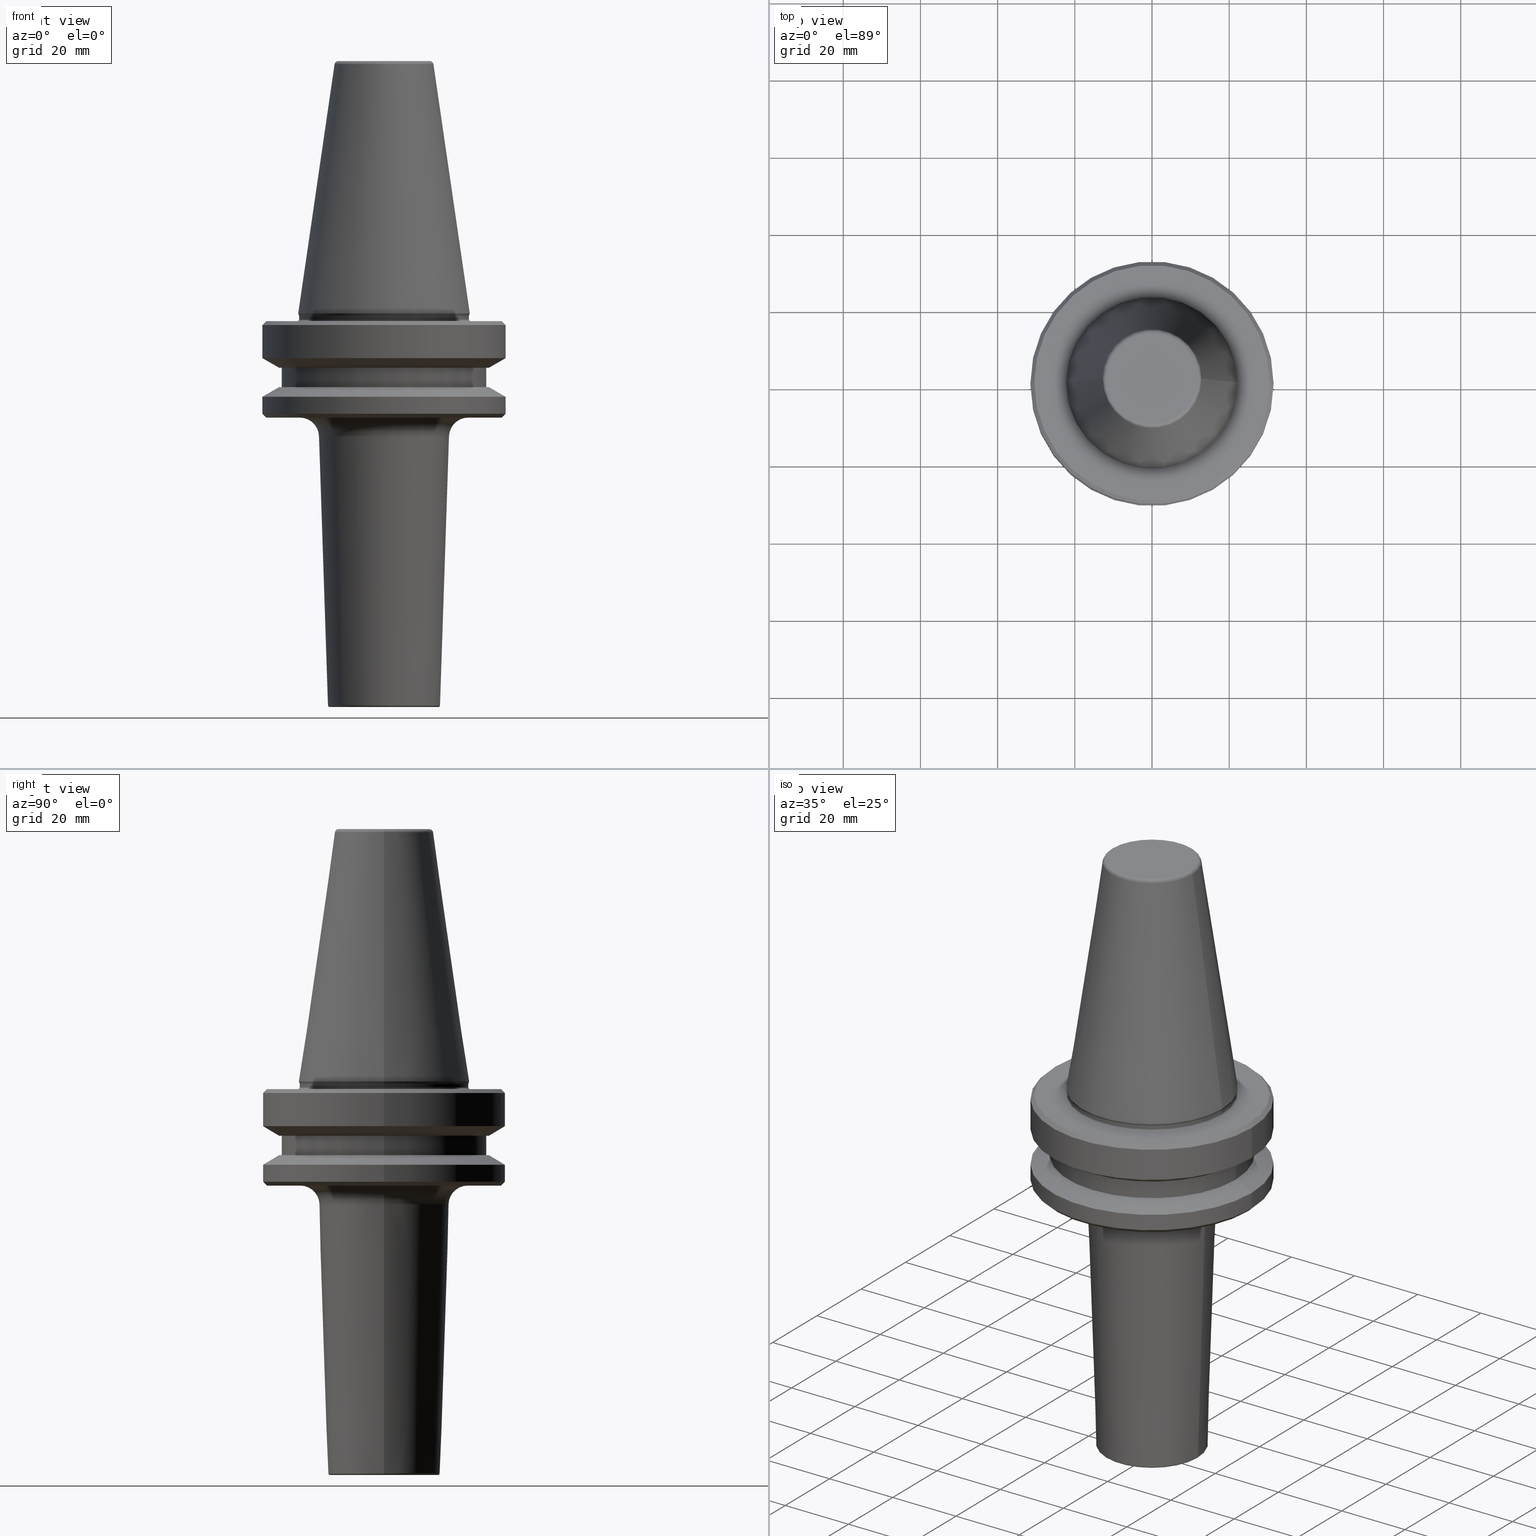
[diagram: canonical four-view strip — front | top / right | iso, engineering-drawing reading convention]
A machine part, canonical four-view strip (front | top / right | iso — engineering-drawing reading convention). The complete STEP part file that produces these views, byte-faithful:
ISO-10303-21;
HEADER;
FILE_DESCRIPTION (( 'STEP AP203' ),
    '1' );
FILE_NAME ('BT40 MCA16 075 AD+B-2.5G 25000 SL.STEP',
    '2019-05-24T10:26:37',
    ( '' ),
    ( '' ),
    'SwSTEP 2.0',
    'SolidWorks 2014',
    '' );
FILE_SCHEMA (( 'CONFIG_CONTROL_DESIGN' ));
ENDSEC;

DATA;
#1 = EDGE_CURVE ( 'NONE', #451, #362, #836, .T. ) ;
#2 = ORIENTED_EDGE ( 'NONE', *, *, #100, .T. ) ;
#3 = DIRECTION ( 'NONE',  ( 1.000000000000000000, 0.0000000000000000000, 0.0000000000000000000 ) ) ;
#4 = CARTESIAN_POINT ( 'NONE',  ( 0.0000000000000000000, 0.0000000000000000000, -66.90000000000040400 ) ) ;
#5 = CARTESIAN_POINT ( 'NONE',  ( 0.0000000000000000000, 0.0000000000000000000, -92.40000000000803500 ) ) ;
#6 = ORIENTED_EDGE ( 'NONE', *, *, #100, .F. ) ;
#7 = CARTESIAN_POINT ( 'NONE',  ( -31.50000000000008500, 3.857637417314172900E-015, -87.00014200631733300 ) ) ;
#8 = DIRECTION ( 'NONE',  ( 1.000000000000000000, 0.0000000000000000000, 0.0000000000000000000 ) ) ;
#9 = CONICAL_SURFACE ( 'NONE', #71, 31.50000000000008500, 1.047197551196587000 ) ;
#10 = CIRCLE ( 'NONE', #313, 21.83611033993455000 ) ;
#11 = EDGE_CURVE ( 'NONE', #537, #829, #401, .T. ) ;
#12 = EDGE_LOOP ( 'NONE', ( #419, #2, #900, #423 ) ) ;
#13 = ADVANCED_FACE ( 'NONE', ( #610, #1042 ), #1055, .T. ) ;
#14 = CARTESIAN_POINT ( 'NONE',  ( 11.82266927716813000, 0.0000000000000000000, -1.000000000000334000 ) ) ;
#15 = COORDINATED_UNIVERSAL_TIME_OFFSET ( 5, 30, .AHEAD. ) ;
#16 = AXIS2_PLACEMENT_3D ( 'NONE', #224, #788, #309 ) ;
#17 = MANIFOLD_SOLID_BREP ( 'Revolve1', #613 ) ;
#18 = CARTESIAN_POINT ( 'NONE',  ( 22.00000000000002100, 0.0000000000000000000, -66.08871321165987900 ) ) ;
#19 = DIRECTION ( 'NONE',  ( 0.0000000000000000000, -0.0000000000000000000, 1.000000000000000000 ) ) ;
#20 = CIRCLE ( 'NONE', #565, 5.000000000000018700 ) ;
#21 = EDGE_LOOP ( 'NONE', ( #846, #107 ) ) ;
#22 = CC_DESIGN_SECURITY_CLASSIFICATION ( #815, ( #538 ) ) ;
#23 = FACE_OUTER_BOUND ( 'NONE', #584, .T. ) ;
#24 = ORIENTED_EDGE ( 'NONE', *, *, #488, .F. ) ;
#25 = CARTESIAN_POINT ( 'NONE',  ( -26.50000000000019200, 3.245314017740509400E-015, -84.50000000000068200 ) ) ;
#26 = ORIENTED_EDGE ( 'NONE', *, *, #77, .T. ) ;
#27 = ORIENTED_EDGE ( 'NONE', *, *, #137, .T. ) ;
#28 = AXIS2_PLACEMENT_3D ( 'NONE', #289, #849, #364 ) ;
#29 = ADVANCED_FACE ( 'NONE', ( #373, #585 ), #736, .F. ) ;
#30 = EDGE_LOOP ( 'NONE', ( #73, #105 ) ) ;
#31 = CARTESIAN_POINT ( 'NONE',  ( 0.0000000000000000000, 0.0000000000000000000, 0.0000000000000000000 ) ) ;
#32 = EDGE_CURVE ( 'NONE', #767, #937, #991, .T. ) ;
#33 = DIRECTION ( 'NONE',  ( 1.000000000000000000, 0.0000000000000000000, 0.0000000000000000000 ) ) ;
#34 = EDGE_CURVE ( 'NONE', #937, #657, #811, .T. ) ;
#35 = VERTEX_POINT ( 'NONE', #776 ) ;
#36 = DIRECTION ( 'NONE',  ( 1.000000000000000000, 0.0000000000000000000, 0.0000000000000000000 ) ) ;
#37 = FACE_OUTER_BOUND ( 'NONE', #573, .T. ) ;
#38 = DIRECTION ( 'NONE',  ( 1.000000000000000000, 0.0000000000000000000, 0.0000000000000000000 ) ) ;
#39 = FACE_OUTER_BOUND ( 'NONE', #1040, .T. ) ;
#40 = CARTESIAN_POINT ( 'NONE',  ( 0.0000000000000000000, 0.0000000000000000000, -1.000000000000334000 ) ) ;
#41 = PERSON ( 'UNSPECIFIED', 'UNSPECIFIED', 'UNSPECIFIED', ('UNSPECIFIED'), ('UNSPECIFIED'), ('UNSPECIFIED') ) ;
#42 = ORIENTED_EDGE ( 'NONE', *, *, #138, .T. ) ;
#43 = CARTESIAN_POINT ( 'NONE',  ( -12.81220206925736900, 0.0000000000000000000, -0.8556918111122247000 ) ) ;
#44 = CARTESIAN_POINT ( 'NONE',  ( 16.83888580503877800, 0.0000000000000000000, -97.23342584884484600 ) ) ;
#45 = ADVANCED_FACE ( 'NONE', ( #351 ), #780, .T. ) ;
#46 = CARTESIAN_POINT ( 'NONE',  ( 0.0000000000000000000, 0.0000000000000000000, -166.9000000000083300 ) ) ;
#47 = LOCAL_TIME ( 15, 56, 37.00000000000000000, #270 ) ;
#48 = CARTESIAN_POINT ( 'NONE',  ( 26.50000000000019200, 0.0000000000000000000, 6.357346922996331500 ) ) ;
#49 = DIRECTION ( 'NONE',  ( -0.0000000000000000000, -0.0000000000000000000, 1.000000000000000000 ) ) ;
#50 = DIRECTION ( 'NONE',  ( -0.0000000000000000000, -0.0000000000000000000, 1.000000000000000000 ) ) ;
#51 = DIRECTION ( 'NONE',  ( -0.0000000000000000000, -0.0000000000000000000, 1.000000000000000000 ) ) ;
#52 = EDGE_CURVE ( 'NONE', #168, #465, #969, .T. ) ;
#53 = FACE_OUTER_BOUND ( 'NONE', #917, .T. ) ;
#54 = CARTESIAN_POINT ( 'NONE',  ( 0.0000000000000000000, 0.0000000000000000000, 6.357346922996331500 ) ) ;
#55 = DIRECTION ( 'NONE',  ( -0.0000000000000000000, -0.0000000000000000000, 1.000000000000000000 ) ) ;
#56 = CARTESIAN_POINT ( 'NONE',  ( -14.51611141949611500, 1.777710938595226200E-015, -166.9166574151246300 ) ) ;
#57 = LINE ( 'NONE', #553, #894 ) ;
#58 = DIRECTION ( 'NONE',  ( -0.0000000000000000000, -0.0000000000000000000, 1.000000000000000000 ) ) ;
#59 = AXIS2_PLACEMENT_3D ( 'NONE', #741, #262, #579 ) ;
#60 = ORIENTED_EDGE ( 'NONE', *, *, #437, .T. ) ;
#61 = CARTESIAN_POINT ( 'NONE',  ( -31.50000000000008500, 3.857637417314172900E-015, 6.357346922996331500 ) ) ;
#62 = EDGE_LOOP ( 'NONE', ( #786, #251, #891, #655 ) ) ;
#63 = DIRECTION ( 'NONE',  ( 1.000000000000000000, 0.0000000000000000000, 0.0000000000000000000 ) ) ;
#64 = ORIENTED_EDGE ( 'NONE', *, *, #176, .T. ) ;
#65 = EDGE_CURVE ( 'NONE', #992, #718, #156, .T. ) ;
#66 = DIRECTION ( 'NONE',  ( -0.0000000000000000000, -0.0000000000000000000, 1.000000000000000000 ) ) ;
#67 = ORIENTED_EDGE ( 'NONE', *, *, #774, .F. ) ;
#68 = CARTESIAN_POINT ( 'NONE',  ( -22.00000000000002100, 2.724839128102860200E-015, -66.90000000000040400 ) ) ;
#69 = CIRCLE ( 'NONE', #797, 0.9999999999999696900 ) ;
#70 = CIRCLE ( 'NONE', #413, 30.49999999999997200 ) ;
#71 = AXIS2_PLACEMENT_3D ( 'NONE', #670, #186, #508 ) ;
#72 = CARTESIAN_POINT ( 'NONE',  ( -11.82266927716813000, 1.447859408766170200E-015, -1.000000000000334000 ) ) ;
#73 = ORIENTED_EDGE ( 'NONE', *, *, #563, .F. ) ;
#74 = ORIENTED_EDGE ( 'NONE', *, *, #605, .T. ) ;
#75 = APPROVAL_DATE_TIME ( #297, #590 ) ;
#76 = APPLICATION_PROTOCOL_DEFINITION ( 'international standard', 'config_control_design', 1994, #557 ) ;
#77 = EDGE_CURVE ( 'NONE', #657, #718, #540, .T. ) ;
#78 = CARTESIAN_POINT ( 'NONE',  ( 0.0000000000000000000, 0.0000000000000000000, 6.357346922996331500 ) ) ;
#79 = DIRECTION ( 'NONE',  ( -1.000000000000000000, 0.0000000000000000000, 0.0000000000000000000 ) ) ;
#80 = AXIS2_PLACEMENT_3D ( 'NONE', #250, #361, #620 ) ;
#81 = APPROVAL_ROLE ( '' ) ;
#82 = ADVANCED_FACE ( 'NONE', ( #109 ), #701, .T. ) ;
#83 = ORIENTED_EDGE ( 'NONE', *, *, #97, .T. ) ;
#84 = PRODUCT_RELATED_PRODUCT_CATEGORY ( 'detail', '', ( #927 ) ) ;
#85 = ORIENTED_EDGE ( 'NONE', *, *, #282, .T. ) ;
#86 = EDGE_CURVE ( 'NONE', #729, #492, #514, .T. ) ;
#87 = CARTESIAN_POINT ( 'NONE',  ( 26.50000000000019200, 0.0000000000000000000, -79.50000000000012800 ) ) ;
#88 = ADVANCED_FACE ( 'NONE', ( #939 ), #730, .F. ) ;
#89 = CIRCLE ( 'NONE', #593, 22.00000000000002100 ) ;
#90 = DIRECTION ( 'NONE',  ( 0.7071067811865474600, 8.659560562354931600E-017, -0.7071067811865475700 ) ) ;
#91 = DIRECTION ( 'NONE',  ( 0.0000000000000000000, -0.0000000000000000000, 1.000000000000000000 ) ) ;
#92 = ORIENTED_EDGE ( 'NONE', *, *, #800, .T. ) ;
#93 = AXIS2_PLACEMENT_3D ( 'NONE', #296, #854, #367 ) ;
#94 = LINE ( 'NONE', #744, #921 ) ;
#95 = FACE_OUTER_BOUND ( 'NONE', #765, .T. ) ;
#96 = VERTEX_POINT ( 'NONE', #943 ) ;
#97 = EDGE_CURVE ( 'NONE', #168, #142, #305, .T. ) ;
#98 = ORIENTED_EDGE ( 'NONE', *, *, #280, .T. ) ;
#99 = DIRECTION ( 'NONE',  ( 1.000000000000000000, 0.0000000000000000000, 0.0000000000000000000 ) ) ;
#100 = EDGE_CURVE ( 'NONE', #749, #432, #57, .T. ) ;
#101 = EDGE_CURVE ( 'NONE', #362, #642, #276, .T. ) ;
#102 = CARTESIAN_POINT ( 'NONE',  ( -27.16962701892256100, 0.0000000000000000000, -84.50000000000068200 ) ) ;
#103 = EDGE_CURVE ( 'NONE', #990, #754, #673, .T. ) ;
#104 = DIRECTION ( 'NONE',  ( 0.0000000000000000000, 0.0000000000000000000, -1.000000000000000000 ) ) ;
#105 = ORIENTED_EDGE ( 'NONE', *, *, #930, .F. ) ;
#106 = CARTESIAN_POINT ( 'NONE',  ( 0.0000000000000000000, 0.0000000000000000000, -76.99985799368391800 ) ) ;
#107 = ORIENTED_EDGE ( 'NONE', *, *, #165, .T. ) ;
#108 = ORIENTED_EDGE ( 'NONE', *, *, #1038, .T. ) ;
#109 = FACE_OUTER_BOUND ( 'NONE', #135, .T. ) ;
#110 = EDGE_LOOP ( 'NONE', ( #336, #546 ) ) ;
#111 = AXIS2_PLACEMENT_3D ( 'NONE', #889, #246, #965 ) ;
#112 = ADVANCED_FACE ( 'NONE', ( #23 ), #461, .F. ) ;
#113 = CIRCLE ( 'NONE', #279, 12.81220206925736900 ) ;
#114 = DIRECTION ( 'NONE',  ( -1.000000000000000000, 0.0000000000000000000, 0.0000000000000000000 ) ) ;
#115 = CARTESIAN_POINT ( 'NONE',  ( 0.0000000000000000000, 0.0000000000000000000, -79.50000000000012800 ) ) ;
#116 = EDGE_CURVE ( 'NONE', #378, #844, #870, .T. ) ;
#117 = FACE_BOUND ( 'NONE', #589, .T. ) ;
#118 = CIRCLE ( 'NONE', #819, 31.50000000000008500 ) ;
#119 = ORIENTED_EDGE ( 'NONE', *, *, #52, .T. ) ;
#120 = DESIGN_CONTEXT ( 'detailed design', #557, 'design' ) ;
#121 = DIRECTION ( 'NONE',  ( -0.0000000000000000000, -0.0000000000000000000, 1.000000000000000000 ) ) ;
#122 = CARTESIAN_POINT ( 'NONE',  ( 0.0000000000000000000, 0.0000000000000000000, -84.50000000000068200 ) ) ;
#123 = AXIS2_PLACEMENT_3D ( 'NONE', #985, #346, #909 ) ;
#124 = DIRECTION ( 'NONE',  ( 1.000000000000000000, 0.0000000000000000000, 0.0000000000000000000 ) ) ;
#125 = EDGE_CURVE ( 'NONE', #704, #793, #489, .T. ) ;
#126 = CARTESIAN_POINT ( 'NONE',  ( 31.50000000000008500, 0.0000000000000000000, -76.99985799368391800 ) ) ;
#127 = AXIS2_PLACEMENT_3D ( 'NONE', #54, #190, #756 ) ;
#128 = CARTESIAN_POINT ( 'NONE',  ( 0.0000000000000000000, 0.0000000000000000000, 6.357346922996331500 ) ) ;
#129 = CARTESIAN_POINT ( 'NONE',  ( 30.49999999999997200, 3.735172737399423600E-015, -67.40000000000034700 ) ) ;
#130 = ADVANCED_FACE ( 'NONE', ( #433 ), #134, .T. ) ;
#131 = ORIENTED_EDGE ( 'NONE', *, *, #998, .T. ) ;
#132 = CARTESIAN_POINT ( 'NONE',  ( 0.0000000000000000000, 0.0000000000000000000, -166.9000000000083300 ) ) ;
#133 = ORIENTED_EDGE ( 'NONE', *, *, #307, .F. ) ;
#134 = CONICAL_SURFACE ( 'NONE', #805, 16.83888580503877800, 0.03332099587824720300 ) ;
#135 = EDGE_LOOP ( 'NONE', ( #83, #42, #193, #872 ) ) ;
#136 = APPROVAL_PERSON_ORGANIZATION ( #353, #590, #324 ) ;
#137 = EDGE_CURVE ( 'NONE', #465, #194, #622, .T. ) ;
#138 = EDGE_CURVE ( 'NONE', #142, #749, #221, .T. ) ;
#139 = CARTESIAN_POINT ( 'NONE',  ( 31.50000000000008500, 0.0000000000000000000, -87.00014200631733300 ) ) ;
#140 = CYLINDRICAL_SURFACE ( 'NONE', #111, 26.50000000000019200 ) ;
#141 = DIRECTION ( 'NONE',  ( 0.7071067811865487900, 0.0000000000000000000, 0.7071067811865463500 ) ) ;
#142 = VERTEX_POINT ( 'NONE', #371 ) ;
#143 = CIRCLE ( 'NONE', #772, 16.83888580503877800 ) ;
#144 = AXIS2_PLACEMENT_3D ( 'NONE', #1009, #529, #38 ) ;
#145 = EDGE_LOOP ( 'NONE', ( #6, #850, #27, #148 ) ) ;
#146 = CARTESIAN_POINT ( 'NONE',  ( 0.0000000000000000000, 0.0000000000000000000, -84.50000000000068200 ) ) ;
#147 = EDGE_CURVE ( 'NONE', #992, #937, #1051, .T. ) ;
#148 = ORIENTED_EDGE ( 'NONE', *, *, #710, .F. ) ;
#149 = CARTESIAN_POINT ( 'NONE',  ( 0.0000000000000000000, 0.0000000000000000000, -92.40000000000803500 ) ) ;
#150 = DIRECTION ( 'NONE',  ( -0.0000000000000000000, -0.0000000000000000000, 1.000000000000000000 ) ) ;
#151 = DIRECTION ( 'NONE',  ( -1.000000000000000000, 1.224646799147353000E-016, 0.0000000000000000000 ) ) ;
#152 = APPROVAL_ROLE ( '' ) ;
#153 = CARTESIAN_POINT ( 'NONE',  ( 0.0000000000000000000, 0.0000000000000000000, -0.8556918111122247000 ) ) ;
#154 = AXIS2_PLACEMENT_3D ( 'NONE', #31, #520, #957 ) ;
#155 = ORIENTED_EDGE ( 'NONE', *, *, #728, .T. ) ;
#156 = LINE ( 'NONE', #61, #331 ) ;
#157 = CARTESIAN_POINT ( 'NONE',  ( 30.49999999999241900, 0.0000000000000000000, -92.40000000000803500 ) ) ;
#158 = EDGE_LOOP ( 'NONE', ( #719, #595, #1027, #160 ) ) ;
#159 = COORDINATED_UNIVERSAL_TIME_OFFSET ( 5, 30, .AHEAD. ) ;
#160 = ORIENTED_EDGE ( 'NONE', *, *, #899, .F. ) ;
#161 = EDGE_CURVE ( 'NONE', #465, #749, #866, .T. ) ;
#162 = AXIS2_PLACEMENT_3D ( 'NONE', #983, #904, #825 ) ;
#163 = CYLINDRICAL_SURFACE ( 'NONE', #995, 26.50000000000019200 ) ;
#164 = CIRCLE ( 'NONE', #349, 0.4999999999996985700 ) ;
#165 = EDGE_CURVE ( 'NONE', #793, #704, #431, .T. ) ;
#166 = CARTESIAN_POINT ( 'NONE',  ( -31.50000000000008500, 3.857637417314172900E-015, -68.40000000000046000 ) ) ;
#167 = EDGE_CURVE ( 'NONE', #326, #35, #648, .T. ) ;
#168 = VERTEX_POINT ( 'NONE', #157 ) ;
#169 = ORIENTED_EDGE ( 'NONE', *, *, #280, .F. ) ;
#170 = CARTESIAN_POINT ( 'NONE',  ( 0.0000000000000000000, 0.0000000000000000000, -67.40000000000034700 ) ) ;
#171 = ADVANCED_FACE ( 'NONE', ( #1047 ), #407, .T. ) ;
#172 = DIRECTION ( 'NONE',  ( 1.000000000000000000, 0.0000000000000000000, 0.0000000000000000000 ) ) ;
#173 = CARTESIAN_POINT ( 'NONE',  ( 0.0000000000000000000, 0.0000000000000000000, 6.357346922996331500 ) ) ;
#174 = AXIS2_PLACEMENT_3D ( 'NONE', #440, #1001, #519 ) ;
#175 = EDGE_CURVE ( 'NONE', #96, #990, #619, .T. ) ;
#176 = EDGE_CURVE ( 'NONE', #953, #378, #189, .T. ) ;
#177 = PLANE ( 'NONE',  #954 ) ;
#178 = CONICAL_SURFACE ( 'NONE', #391, 16.83888580503877800, 0.03332099587824720300 ) ;
#179 = VECTOR ( 'NONE', #90, 1000.000000000000000 ) ;
#180 = CARTESIAN_POINT ( 'NONE',  ( 22.22499999999993700, 0.0000000000000000000, -65.40000000000057400 ) ) ;
#181 = ORIENTED_EDGE ( 'NONE', *, *, #1044, .T. ) ;
#182 = AXIS2_PLACEMENT_3D ( 'NONE', #944, #466, #1026 ) ;
#183 = VECTOR ( 'NONE', #426, 1000.000000000000000 ) ;
#184 = LOCAL_TIME ( 15, 56, 37.00000000000000000, #402 ) ;
#185 = EDGE_LOOP ( 'NONE', ( #281, #98 ) ) ;
#186 = DIRECTION ( 'NONE',  ( 0.0000000000000000000, 0.0000000000000000000, -1.000000000000000000 ) ) ;
#187 = FACE_OUTER_BOUND ( 'NONE', #795, .T. ) ;
#188 = EDGE_CURVE ( 'NONE', #537, #844, #219, .T. ) ;
#189 = CIRCLE ( 'NONE', #16, 0.4000000000001536800 ) ;
#190 = DIRECTION ( 'NONE',  ( -0.0000000000000000000, -0.0000000000000000000, 1.000000000000000000 ) ) ;
#191 = CARTESIAN_POINT ( 'NONE',  ( 0.0000000000000000000, 0.0000000000000000000, -87.00014200631733300 ) ) ;
#192 = DIRECTION ( 'NONE',  ( 1.000000000000000000, 0.0000000000000000000, 0.0000000000000000000 ) ) ;
#193 = ORIENTED_EDGE ( 'NONE', *, *, #161, .F. ) ;
#194 = VERTEX_POINT ( 'NONE', #139 ) ;
#195 = AXIS2_PLACEMENT_3D ( 'NONE', #929, #445, #691 ) ;
#196 = CARTESIAN_POINT ( 'NONE',  ( 0.0000000000000000000, 0.0000000000000000000, -76.99985799368391800 ) ) ;
#197 = EDGE_CURVE ( 'NONE', #451, #378, #592, .T. ) ;
#198 =( NAMED_UNIT ( * ) SI_UNIT ( $, .STERADIAN. ) SOLID_ANGLE_UNIT ( ) );
#199 = DIRECTION ( 'NONE',  ( 1.224646799147353200E-016, 1.000000000000000000, 0.0000000000000000000 ) ) ;
#200 = EDGE_CURVE ( 'NONE', #953, #537, #817, .T. ) ;
#201 = DIRECTION ( 'NONE',  ( 0.8660254037844332700, 1.060575238724900300E-016, -0.5000000000000093300 ) ) ;
#202 = DIRECTION ( 'NONE',  ( 1.000000000000000000, 0.0000000000000000000, 0.0000000000000000000 ) ) ;
#203 = EDGE_LOOP ( 'NONE', ( #472, #383 ) ) ;
#204 = CARTESIAN_POINT ( 'NONE',  ( 11.82266927716813000, 0.0000000000000000000, -4.440892098500626200E-013 ) ) ;
#205 = CARTESIAN_POINT ( 'NONE',  ( 0.0000000000000000000, 0.0000000000000000000, -84.50000000000068200 ) ) ;
#206 = CONICAL_SURFACE ( 'NONE', #235, 31.50000000000008500, 1.047197551196597400 ) ;
#207 = CIRCLE ( 'NONE', #523, 31.50000000000008500 ) ;
#208 = ORIENTED_EDGE ( 'NONE', *, *, #212, .F. ) ;
#209 = EDGE_LOOP ( 'NONE', ( #587, #64, #876, #469 ) ) ;
#210 = ORIENTED_EDGE ( 'NONE', *, *, #101, .T. ) ;
#211 = DIRECTION ( 'NONE',  ( -0.0000000000000000000, -0.0000000000000000000, 1.000000000000000000 ) ) ;
#212 = EDGE_CURVE ( 'NONE', #821, #432, #841, .T. ) ;
#213 = CARTESIAN_POINT ( 'NONE',  ( 0.0000000000000000000, 0.0000000000000000000, -97.23342584884484600 ) ) ;
#214 = ORGANIZATION ( 'UNSPECIFIED', 'UNSPECIFIED', '' ) ;
#215 = CC_DESIGN_PERSON_AND_ORGANIZATION_ASSIGNMENT ( #1045, #1034, ( #927 ) ) ;
#216 = DIRECTION ( 'NONE',  ( -0.0000000000000000000, -0.0000000000000000000, 1.000000000000000000 ) ) ;
#217 = CONICAL_SURFACE ( 'NONE', #404, 31.50000000000008500, 0.7853981633974500600 ) ;
#218 = DIRECTION ( 'NONE',  ( -0.0000000000000000000, -0.0000000000000000000, 1.000000000000000000 ) ) ;
#219 = CIRCLE ( 'NONE', #182, 0.4000000000001502400 ) ;
#220 = AXIS2_PLACEMENT_3D ( 'NONE', #385, #951, #473 ) ;
#221 = LINE ( 'NONE', #301, #650 ) ;
#222 = DIRECTION ( 'NONE',  ( 1.224646799147353200E-016, 1.000000000000000000, 0.0000000000000000000 ) ) ;
#223 = EDGE_CURVE ( 'NONE', #829, #754, #1024, .T. ) ;
#224 = CARTESIAN_POINT ( 'NONE',  ( -22.40000000000019800, 2.743208830090095500E-015, -66.08871321165987900 ) ) ;
#225 = AXIS2_PLACEMENT_3D ( 'NONE', #707, #308, #871 ) ;
#226 = DIRECTION ( 'NONE',  ( 1.000000000000000000, 0.0000000000000000000, 0.0000000000000000000 ) ) ;
#227 = ORIENTED_EDGE ( 'NONE', *, *, #725, .T. ) ;
#228 = ORIENTED_EDGE ( 'NONE', *, *, #703, .F. ) ;
#229 = EDGE_LOOP ( 'NONE', ( #911, #60, #895, #24 ) ) ;
#230 = DIRECTION ( 'NONE',  ( -0.0000000000000000000, -0.0000000000000000000, 1.000000000000000000 ) ) ;
#231 = CARTESIAN_POINT ( 'NONE',  ( 0.0000000000000000000, 0.0000000000000000000, -4.440892098500626200E-013 ) ) ;
#232 = DIRECTION ( 'NONE',  ( 1.000000000000000000, 0.0000000000000000000, 0.0000000000000000000 ) ) ;
#233 = EDGE_CURVE ( 'NONE', #649, #1037, #164, .T. ) ;
#234 = ORIENTED_EDGE ( 'NONE', *, *, #147, .T. ) ;
#235 = AXIS2_PLACEMENT_3D ( 'NONE', #106, #594, #678 ) ;
#236 = CARTESIAN_POINT ( 'NONE',  ( 0.0000000000000000000, 0.0000000000000000000, -97.40000000000803500 ) ) ;
#237 = FACE_OUTER_BOUND ( 'NONE', #884, .T. ) ;
#238 = FACE_OUTER_BOUND ( 'NONE', #12, .T. ) ;
#239 = CARTESIAN_POINT ( 'NONE',  ( 30.49999999999997200, 3.796405077356798300E-015, -67.40000000000034700 ) ) ;
#240 = DATE_TIME_ROLE ( 'creation_date' ) ;
#241 = ORIENTED_EDGE ( 'NONE', *, *, #1, .F. ) ;
#242 = EDGE_CURVE ( 'NONE', #96, #829, #572, .T. ) ;
#243 = CARTESIAN_POINT ( 'NONE',  ( 0.0000000000000000000, 0.0000000000000000000, -67.40000000000034700 ) ) ;
#244 = APPROVAL_PERSON_ORGANIZATION ( #453, #972, #81 ) ;
#245 = ADVANCED_FACE ( 'NONE', ( #53 ), #785, .T. ) ;
#246 = DIRECTION ( 'NONE',  ( -0.0000000000000000000, -0.0000000000000000000, 1.000000000000000000 ) ) ;
#247 = EDGE_CURVE ( 'NONE', #35, #718, #669, .T. ) ;
#248 = AXIS2_PLACEMENT_3D ( 'NONE', #312, #877, #843 ) ;
#249 = FACE_OUTER_BOUND ( 'NONE', #350, .T. ) ;
#250 = CARTESIAN_POINT ( 'NONE',  ( 0.0000000000000000000, 0.0000000000000000000, -0.8556918111122247000 ) ) ;
#251 = ORIENTED_EDGE ( 'NONE', *, *, #242, .T. ) ;
#252 = VECTOR ( 'NONE', #689, 1000.000000000000000 ) ;
#253 = ORIENTED_EDGE ( 'NONE', *, *, #725, .F. ) ;
#254 = DIRECTION ( 'NONE',  ( -0.0000000000000000000, -0.0000000000000000000, 1.000000000000000000 ) ) ;
#255 = ORIENTED_EDGE ( 'NONE', *, *, #307, .T. ) ;
#256 = EDGE_LOOP ( 'NONE', ( #400, #633 ) ) ;
#257 = ORIENTED_EDGE ( 'NONE', *, *, #930, .T. ) ;
#258 = AXIS2_PLACEMENT_3D ( 'NONE', #299, #861, #370 ) ;
#259 = ADVANCED_FACE ( 'NONE', ( #249 ), #217, .T. ) ;
#260 = DIRECTION ( 'NONE',  ( -1.000000000000000000, 0.0000000000000000000, 0.0000000000000000000 ) ) ;
#261 = ORIENTED_EDGE ( 'NONE', *, *, #277, .T. ) ;
#262 = DIRECTION ( 'NONE',  ( -0.0000000000000000000, -0.0000000000000000000, 1.000000000000000000 ) ) ;
#263 = CARTESIAN_POINT ( 'NONE',  ( 0.0000000000000000000, 0.0000000000000000000, -68.40000000000046000 ) ) ;
#264 = CYLINDRICAL_SURFACE ( 'NONE', #295, 31.50000000000008500 ) ;
#265 = CONICAL_SURFACE ( 'NONE', #875, 30.49999999999997200, 0.7853981633974482800 ) ;
#266 = EDGE_CURVE ( 'NONE', #674, #821, #429, .T. ) ;
#267 = ADVANCED_FACE ( 'NONE', ( #646 ), #865, .T. ) ;
#268 = ORIENTED_EDGE ( 'NONE', *, *, #242, .F. ) ;
#269 = DIRECTION ( 'NONE',  ( -1.000000000000000000, 0.0000000000000000000, -0.0000000000000000000 ) ) ;
#270 = COORDINATED_UNIVERSAL_TIME_OFFSET ( 5, 30, .AHEAD. ) ;
#271 = DIRECTION ( 'NONE',  ( -0.0000000000000000000, -0.0000000000000000000, 1.000000000000000000 ) ) ;
#272 = CIRCLE ( 'NONE', #671, 21.83611033993455000 ) ;
#273 = PRODUCT_DEFINITION ( 'UNKNOWN', '', #538, #120 ) ;
#274 = EDGE_CURVE ( 'NONE', #424, #652, #20, .T. ) ;
#275 = CARTESIAN_POINT ( 'NONE',  ( 26.50000000000019200, 0.0000000000000000000, -84.50000000000068200 ) ) ;
#276 = CIRCLE ( 'NONE', #582, 22.49999999999996400 ) ;
#277 = EDGE_CURVE ( 'NONE', #858, #704, #890, .T. ) ;
#278 = ORIENTED_EDGE ( 'NONE', *, *, #563, .T. ) ;
#279 = AXIS2_PLACEMENT_3D ( 'NONE', #631, #150, #717 ) ;
#280 = EDGE_CURVE ( 'NONE', #729, #424, #272, .T. ) ;
#281 = ORIENTED_EDGE ( 'NONE', *, *, #703, .T. ) ;
#282 = EDGE_CURVE ( 'NONE', #652, #492, #617, .T. ) ;
#283 = DIRECTION ( 'NONE',  ( 0.03331483023263848800, 0.0000000000000000000, 0.9994449069791543300 ) ) ;
#284 = EDGE_CURVE ( 'NONE', #567, #291, #1046, .T. ) ;
#285 = DIRECTION ( 'NONE',  ( 1.000000000000000000, 0.0000000000000000000, 0.0000000000000000000 ) ) ;
#286 = ORIENTED_EDGE ( 'NONE', *, *, #430, .F. ) ;
#287 = CARTESIAN_POINT ( 'NONE',  ( 0.0000000000000000000, 0.0000000000000000000, -91.40000000000037500 ) ) ;
#288 = CYLINDRICAL_SURFACE ( 'NONE', #901, 22.00000000000002100 ) ;
#289 = CARTESIAN_POINT ( 'NONE',  ( 22.49999999999996400, 0.0000000000000000000, -66.90000000000040400 ) ) ;
#290 = CYLINDRICAL_SURFACE ( 'NONE', #1028, 31.50000000000008500 ) ;
#291 = VERTEX_POINT ( 'NONE', #947 ) ;
#292 = DIRECTION ( 'NONE',  ( 1.000000000000000000, 0.0000000000000000000, 0.0000000000000000000 ) ) ;
#293 = ORIENTED_EDGE ( 'NONE', *, *, #624, .T. ) ;
#294 = CARTESIAN_POINT ( 'NONE',  ( 0.0000000000000000000, -2.960119862453558900E-013, -92.40000000000802100 ) ) ;
#295 = AXIS2_PLACEMENT_3D ( 'NONE', #750, #435, #999 ) ;
#296 = CARTESIAN_POINT ( 'NONE',  ( 0.0000000000000000000, 0.0000000000000000000, -67.40000000000034700 ) ) ;
#297 = DATE_AND_TIME ( #506, #721 ) ;
#298 = DIRECTION ( 'NONE',  ( 1.000000000000000000, 0.0000000000000000000, 0.0000000000000000000 ) ) ;
#299 = CARTESIAN_POINT ( 'NONE',  ( 0.0000000000000000000, 0.0000000000000000000, -66.90000000000040400 ) ) ;
#300 = DIRECTION ( 'NONE',  ( -0.0000000000000000000, -0.0000000000000000000, 1.000000000000000000 ) ) ;
#301 = CARTESIAN_POINT ( 'NONE',  ( -31.50000000000008500, 3.857637417314172900E-015, -91.40000000000037500 ) ) ;
#302 = AXIS2_PLACEMENT_3D ( 'NONE', #1005, #522, #33 ) ;
#303 = CARTESIAN_POINT ( 'NONE',  ( 0.0000000000000000000, 0.0000000000000000000, -4.440892098500626200E-013 ) ) ;
#304 = ORIENTED_EDGE ( 'NONE', *, *, #175, .T. ) ;
#305 = CIRCLE ( 'NONE', #511, 30.49999999999241900 ) ;
#306 = EDGE_LOOP ( 'NONE', ( #376, #711, #513, #1033 ) ) ;
#307 = EDGE_CURVE ( 'NONE', #291, #1037, #406, .T. ) ;
#308 = DIRECTION ( 'NONE',  ( -0.0000000000000000000, -0.0000000000000000000, 1.000000000000000000 ) ) ;
#309 = DIRECTION ( 'NONE',  ( -1.000000000000000000, 1.224646799147357600E-016, 0.0000000000000000000 ) ) ;
#310 = LINE ( 'NONE', #337, #548 ) ;
#311 = VERTEX_POINT ( 'NONE', #722 ) ;
#312 = CARTESIAN_POINT ( 'NONE',  ( 0.0000000000000000000, 0.0000000000000000000, -65.95190515433003500 ) ) ;
#313 = AXIS2_PLACEMENT_3D ( 'NONE', #732, #254, #818 ) ;
#314 = CARTESIAN_POINT ( 'NONE',  ( 0.0000000000000000000, 0.0000000000000000000, 6.357346922996331500 ) ) ;
#315 = CIRCLE ( 'NONE', #685, 30.49999999999241900 ) ;
#316 = FACE_OUTER_BOUND ( 'NONE', #528, .T. ) ;
#317 = DIRECTION ( 'NONE',  ( 1.000000000000000000, 0.0000000000000000000, 0.0000000000000000000 ) ) ;
#318 = ORIENTED_EDGE ( 'NONE', *, *, #654, .F. ) ;
#319 = CARTESIAN_POINT ( 'NONE',  ( -11.82266927716813000, 1.508450817090336800E-015, -4.440892098500626200E-013 ) ) ;
#320 = ORIENTED_EDGE ( 'NONE', *, *, #266, .F. ) ;
#321 = AXIS2_PLACEMENT_3D ( 'NONE', #46, #941, #462 ) ;
#322 = CARTESIAN_POINT ( 'NONE',  ( 0.0000000000000000000, 0.0000000000000000000, -87.00014200631733300 ) ) ;
#323 = DIRECTION ( 'NONE',  ( -0.0000000000000000000, -0.0000000000000000000, 1.000000000000000000 ) ) ;
#324 = APPROVAL_ROLE ( '' ) ;
#325 = DIRECTION ( 'NONE',  ( -1.000000000000000000, 0.0000000000000000000, 0.0000000000000000000 ) ) ;
#326 = VERTEX_POINT ( 'NONE', #239 ) ;
#327 = APPROVAL ( #638, 'UNSPECIFIED' ) ;
#328 = ORIENTED_EDGE ( 'NONE', *, *, #824, .F. ) ;
#329 = DIRECTION ( 'NONE',  ( -0.0000000000000000000, -0.0000000000000000000, 1.000000000000000000 ) ) ;
#330 = ORIENTED_EDGE ( 'NONE', *, *, #176, .F. ) ;
#331 = VECTOR ( 'NONE', #789, 1000.000000000000000 ) ;
#332 = ORIENTED_EDGE ( 'NONE', *, *, #167, .F. ) ;
#333 = AXIS2_PLACEMENT_3D ( 'NONE', #880, #389, #956 ) ;
#334 = CIRCLE ( 'NONE', #382, 14.01638896600683800 ) ;
#335 = CARTESIAN_POINT ( 'NONE',  ( -21.83611033993455000, 2.674152263362926900E-015, -92.40000000000800600 ) ) ;
#336 = ORIENTED_EDGE ( 'NONE', *, *, #510, .F. ) ;
#337 = CARTESIAN_POINT ( 'NONE',  ( -31.50000000000008500, 3.857637417314172900E-015, -76.99985799368391800 ) ) ;
#338 = LINE ( 'NONE', #516, #948 ) ;
#339 = FACE_OUTER_BOUND ( 'NONE', #409, .T. ) ;
#340 = CIRCLE ( 'NONE', #758, 0.9999999999999696900 ) ;
#341 = EDGE_LOOP ( 'NONE', ( #332, #227, #26, #403 ) ) ;
#342 = ORIENTED_EDGE ( 'NONE', *, *, #86, .F. ) ;
#343 = DIRECTION ( 'NONE',  ( 1.000000000000000000, 0.0000000000000000000, 0.0000000000000000000 ) ) ;
#344 = AXIS2_PLACEMENT_3D ( 'NONE', #191, #845, #114 ) ;
#345 = PLANE ( 'NONE',  #123 ) ;
#346 = DIRECTION ( 'NONE',  ( 0.0000000000000000000, 0.0000000000000000000, -1.000000000000000000 ) ) ;
#347 = CARTESIAN_POINT ( 'NONE',  ( 22.22499999999993700, 0.0000000000000000000, -65.40000000000057400 ) ) ;
#348 = ORIENTED_EDGE ( 'NONE', *, *, #138, .F. ) ;
#349 = AXIS2_PLACEMENT_3D ( 'NONE', #684, #199, #766 ) ;
#350 = EDGE_LOOP ( 'NONE', ( #348, #515, #119, #679 ) ) ;
#351 = FACE_OUTER_BOUND ( 'NONE', #229, .T. ) ;
#352 = ORIENTED_EDGE ( 'NONE', *, *, #734, .T. ) ;
#353 = PERSON_AND_ORGANIZATION ( #41, #214 ) ;
#354 = CONICAL_SURFACE ( 'NONE', #938, 12.81220206925736900, 0.1448138077623198300 ) ;
#355 = ORIENTED_EDGE ( 'NONE', *, *, #835, .T. ) ;
#356 = PLANE ( 'NONE',  #986 ) ;
#357 = ADVANCED_FACE ( 'NONE', ( #816 ), #163, .T. ) ;
#358 = CARTESIAN_POINT ( 'NONE',  ( 12.81220206925736900, 1.569042225414513200E-015, -0.8556918111122247000 ) ) ;
#359 = ORIENTED_EDGE ( 'NONE', *, *, #274, .T. ) ;
#360 = AXIS2_PLACEMENT_3D ( 'NONE', #603, #696, #454 ) ;
#361 = DIRECTION ( 'NONE',  ( -0.0000000000000000000, -0.0000000000000000000, 1.000000000000000000 ) ) ;
#362 = VERTEX_POINT ( 'NONE', #559 ) ;
#363 = DIRECTION ( 'NONE',  ( -0.0000000000000000000, -0.0000000000000000000, 1.000000000000000000 ) ) ;
#364 = DIRECTION ( 'NONE',  ( 0.0000000000000000000, 0.0000000000000000000, -1.000000000000000000 ) ) ;
#365 = CARTESIAN_POINT ( 'NONE',  ( -30.49999999999997200, 0.0000000000000000000, -67.40000000000034700 ) ) ;
#366 = CARTESIAN_POINT ( 'NONE',  ( -31.50000000000008500, 3.857637417314172900E-015, -76.99985799368391800 ) ) ;
#367 = DIRECTION ( 'NONE',  ( 1.000000000000000000, 0.0000000000000000000, 0.0000000000000000000 ) ) ;
#368 = DIRECTION ( 'NONE',  ( 1.000000000000000000, 0.0000000000000000000, 0.0000000000000000000 ) ) ;
#369 = CIRCLE ( 'NONE', #666, 11.82266927716813000 ) ;
#370 = DIRECTION ( 'NONE',  ( 1.000000000000000000, 0.0000000000000000000, 0.0000000000000000000 ) ) ;
#371 = CARTESIAN_POINT ( 'NONE',  ( -30.49999999999241900, 3.796405077356336000E-015, -92.40000000000803500 ) ) ;
#372 = EDGE_LOOP ( 'NONE', ( #810, #131 ) ) ;
#373 = FACE_OUTER_BOUND ( 'NONE', #256, .T. ) ;
#374 = CC_DESIGN_APPROVAL ( #327, ( #273 ) ) ;
#375 = DIRECTION ( 'NONE',  ( 1.000000000000000000, 0.0000000000000000000, 0.0000000000000000000 ) ) ;
#376 = ORIENTED_EDGE ( 'NONE', *, *, #743, .F. ) ;
#377 = PERSON_AND_ORGANIZATION ( #41, #214 ) ;
#378 = VERTEX_POINT ( 'NONE', #643 ) ;
#379 = FACE_OUTER_BOUND ( 'NONE', #306, .T. ) ;
#380 = VECTOR ( 'NONE', #626, 1000.000000000000000 ) ;
#381 = CARTESIAN_POINT ( 'NONE',  ( 0.0000000000000000000, 0.0000000000000000000, -91.40000000000037500 ) ) ;
#382 = AXIS2_PLACEMENT_3D ( 'NONE', #634, #809, #99 ) ;
#383 = ORIENTED_EDGE ( 'NONE', *, *, #167, .T. ) ;
#384 = ORIENTED_EDGE ( 'NONE', *, *, #605, .F. ) ;
#385 = CARTESIAN_POINT ( 'NONE',  ( 0.0000000000000000000, 0.0000000000000000000, -91.40000000000037500 ) ) ;
#386 = CARTESIAN_POINT ( 'NONE',  ( 14.01638896600683800, 0.0000000000000000000, -166.9000000000083300 ) ) ;
#387 = ADVANCED_FACE ( 'NONE', ( #1022 ), #354, .T. ) ;
#388 = DIRECTION ( 'NONE',  ( -0.0000000000000000000, -0.0000000000000000000, 1.000000000000000000 ) ) ;
#389 = DIRECTION ( 'NONE',  ( -0.0000000000000000000, -0.0000000000000000000, 1.000000000000000000 ) ) ;
#390 = APPLICATION_PROTOCOL_DEFINITION ( 'international standard', 'config_control_design', 1994, #935 ) ;
#391 = AXIS2_PLACEMENT_3D ( 'NONE', #681, #596, #915 ) ;
#392 = DIRECTION ( 'NONE',  ( 1.000000000000000000, 0.0000000000000000000, 0.0000000000000000000 ) ) ;
#393 = DIRECTION ( 'NONE',  ( -0.0000000000000000000, -0.0000000000000000000, 1.000000000000000000 ) ) ;
#394 = CIRCLE ( 'NONE', #450, 26.50000000000019200 ) ;
#395 = LINE ( 'NONE', #129, #179 ) ;
#396 = PERSON_AND_ORGANIZATION_ROLE ( 'design_supplier' ) ;
#397 = EDGE_LOOP ( 'NONE', ( #268, #542, #874, #439 ) ) ;
#398 = EDGE_CURVE ( 'NONE', #821, #674, #570, .T. ) ;
#399 = DIRECTION ( 'NONE',  ( -0.0000000000000000000, -0.0000000000000000000, 1.000000000000000000 ) ) ;
#400 = ORIENTED_EDGE ( 'NONE', *, *, #1038, .F. ) ;
#401 = LINE ( 'NONE', #347, #183 ) ;
#402 = COORDINATED_UNIVERSAL_TIME_OFFSET ( 5, 30, .AHEAD. ) ;
#403 = ORIENTED_EDGE ( 'NONE', *, *, #247, .F. ) ;
#404 = AXIS2_PLACEMENT_3D ( 'NONE', #287, #848, #446 ) ;
#405 = ADVANCED_FACE ( 'NONE', ( #187 ), #140, .T. ) ;
#406 = CIRCLE ( 'NONE', #839, 14.51611141949611600 ) ;
#407 = CYLINDRICAL_SURFACE ( 'NONE', #127, 22.00000000000002100 ) ;
#408 = FACE_OUTER_BOUND ( 'NONE', #158, .T. ) ;
#409 = EDGE_LOOP ( 'NONE', ( #411, #794, #980, #726 ) ) ;
#410 = ADVANCED_FACE ( 'NONE', ( #591 ), #996, .F. ) ;
#411 = ORIENTED_EDGE ( 'NONE', *, *, #494, .T. ) ;
#412 = DIRECTION ( 'NONE',  ( -0.8660254037844383700, 1.060575238724906500E-016, 0.5000000000000003300 ) ) ;
#413 = AXIS2_PLACEMENT_3D ( 'NONE', #491, #1050, #571 ) ;
#414 = DIRECTION ( 'NONE',  ( -0.0000000000000000000, -0.0000000000000000000, 1.000000000000000000 ) ) ;
#415 = ADVANCED_FACE ( 'NONE', ( #784 ), #945, .T. ) ;
#416 = ADVANCED_FACE ( 'NONE', ( #379 ), #517, .T. ) ;
#417 = EDGE_CURVE ( 'NONE', #749, #465, #733, .T. ) ;
#418 = DIRECTION ( 'NONE',  ( -0.3420201433262311000, 4.188538737683878900E-017, 0.9396926207857037000 ) ) ;
#419 = ORIENTED_EDGE ( 'NONE', *, *, #161, .T. ) ;
#420 = FACE_OUTER_BOUND ( 'NONE', #209, .T. ) ;
#421 = EDGE_CURVE ( 'NONE', #990, #96, #113, .T. ) ;
#422 = ORIENTED_EDGE ( 'NONE', *, *, #932, .T. ) ;
#423 = ORIENTED_EDGE ( 'NONE', *, *, #137, .F. ) ;
#424 = VERTEX_POINT ( 'NONE', #664 ) ;
#425 = DATE_AND_TIME ( #644, #862 ) ;
#426 = DIRECTION ( 'NONE',  ( 0.3420201433262311000, 0.0000000000000000000, 0.9396926207857037000 ) ) ;
#427 = CC_DESIGN_PERSON_AND_ORGANIZATION_ASSIGNMENT ( #377, #723, ( #273 ) ) ;
#428 = AXIS2_PLACEMENT_3D ( 'NONE', #748, #989, #898 ) ;
#429 = CIRCLE ( 'NONE', #509, 27.16962701892256100 ) ;
#430 = EDGE_CURVE ( 'NONE', #937, #992, #545, .T. ) ;
#431 = CIRCLE ( 'NONE', #961, 26.50000000000019200 ) ;
#432 = VERTEX_POINT ( 'NONE', #7 ) ;
#433 = FACE_OUTER_BOUND ( 'NONE', #966, .T. ) ;
#434 = AXIS2_PLACEMENT_3D ( 'NONE', #455, #55, #614 ) ;
#435 = DIRECTION ( 'NONE',  ( -0.0000000000000000000, -0.0000000000000000000, 1.000000000000000000 ) ) ;
#436 = ORIENTED_EDGE ( 'NONE', *, *, #421, .T. ) ;
#437 = EDGE_CURVE ( 'NONE', #649, #567, #334, .T. ) ;
#438 = DIRECTION ( 'NONE',  ( 0.0000000000000000000, -1.000000000000000000, 0.0000000000000000000 ) ) ;
#439 = ORIENTED_EDGE ( 'NONE', *, *, #899, .T. ) ;
#440 = CARTESIAN_POINT ( 'NONE',  ( 0.0000000000000000000, 0.0000000000000000000, -65.40000000000057400 ) ) ;
#441 = DIRECTION ( 'NONE',  ( 0.0000000000000000000, 0.0000000000000000000, -1.000000000000000000 ) ) ;
#442 = VERTEX_POINT ( 'NONE', #319 ) ;
#443 = DIRECTION ( 'NONE',  ( -0.0000000000000000000, -0.0000000000000000000, 1.000000000000000000 ) ) ;
#444 = DIRECTION ( 'NONE',  ( -0.03331483023263848800, 4.079890020853818900E-018, 0.9994449069791543300 ) ) ;
#445 = DIRECTION ( 'NONE',  ( 0.0000000000000000000, 0.0000000000000000000, -1.000000000000000000 ) ) ;
#446 = DIRECTION ( 'NONE',  ( 1.000000000000000000, 0.0000000000000000000, 0.0000000000000000000 ) ) ;
#447 = FACE_OUTER_BOUND ( 'NONE', #897, .T. ) ;
#448 = CIRCLE ( 'NONE', #258, 22.00000000000002100 ) ;
#449 = DIRECTION ( 'NONE',  ( 0.0000000000000000000, -0.0000000000000000000, 1.000000000000000000 ) ) ;
#450 = AXIS2_PLACEMENT_3D ( 'NONE', #122, #690, #202 ) ;
#451 = VERTEX_POINT ( 'NONE', #68 ) ;
#452 = DIRECTION ( 'NONE',  ( -0.0000000000000000000, -0.0000000000000000000, 1.000000000000000000 ) ) ;
#453 = PERSON_AND_ORGANIZATION ( #41, #214 ) ;
#454 = DIRECTION ( 'NONE',  ( 1.000000000000000000, 0.0000000000000000000, 0.0000000000000000000 ) ) ;
#455 = CARTESIAN_POINT ( 'NONE',  ( 0.0000000000000000000, 0.0000000000000000000, -65.40000000000057400 ) ) ;
#456 = AXIS2_PLACEMENT_3D ( 'NONE', #761, #363, #923 ) ;
#457 = VECTOR ( 'NONE', #926, 1000.000000000000000 ) ;
#458 = ORIENTED_EDGE ( 'NONE', *, *, #97, .F. ) ;
#459 = CARTESIAN_POINT ( 'NONE',  ( -16.83888580503877800, 2.368160511798890900E-015, -97.23342584884484600 ) ) ;
#460 = VERTEX_POINT ( 'NONE', #478 ) ;
#461 = TOROIDAL_SURFACE ( 'NONE', #695, 22.40000000000019800, 0.4000000000001546800 ) ;
#462 = DIRECTION ( 'NONE',  ( 1.000000000000000000, 0.0000000000000000000, 0.0000000000000000000 ) ) ;
#463 = DIRECTION ( 'NONE',  ( -0.0000000000000000000, -0.0000000000000000000, 1.000000000000000000 ) ) ;
#464 = ORIENTED_EDGE ( 'NONE', *, *, #165, .F. ) ;
#465 = VERTEX_POINT ( 'NONE', #1032 ) ;
#466 = DIRECTION ( 'NONE',  ( 0.0000000000000000000, -1.000000000000000000, 0.0000000000000000000 ) ) ;
#467 = ADVANCED_FACE ( 'NONE', ( #408 ), #549, .T. ) ;
#468 = ORIENTED_EDGE ( 'NONE', *, *, #430, .T. ) ;
#469 = ORIENTED_EDGE ( 'NONE', *, *, #188, .F. ) ;
#470 = AXIS2_PLACEMENT_3D ( 'NONE', #1018, #51, #773 ) ;
#471 = CARTESIAN_POINT ( 'NONE',  ( 0.0000000000000000000, 0.0000000000000000000, -66.90000000000040400 ) ) ;
#472 = ORIENTED_EDGE ( 'NONE', *, *, #686, .T. ) ;
#473 = DIRECTION ( 'NONE',  ( 1.000000000000000000, 0.0000000000000000000, 0.0000000000000000000 ) ) ;
#474 = DIRECTION ( 'NONE',  ( 0.0000000000000000000, 0.0000000000000000000, -1.000000000000000000 ) ) ;
#475 = DIRECTION ( 'NONE',  ( -0.0000000000000000000, -0.0000000000000000000, 1.000000000000000000 ) ) ;
#476 = LINE ( 'NONE', #988, #500 ) ;
#477 = TOROIDAL_SURFACE ( 'NONE', #144, 22.49999999999996400, 0.4999999999999449300 ) ;
#478 = CARTESIAN_POINT ( 'NONE',  ( -27.16962701892322600, 3.592478546794674900E-015, -79.50000000000012800 ) ) ;
#479 = MECHANICAL_CONTEXT ( 'NONE', #935, 'mechanical' ) ;
#480 = ORIENTED_EDGE ( 'NONE', *, *, #284, .F. ) ;
#481 = DIRECTION ( 'NONE',  ( 1.000000000000000000, 0.0000000000000000000, 0.0000000000000000000 ) ) ;
#482 = PERSON_AND_ORGANIZATION ( #41, #214 ) ;
#483 = PERSON_AND_ORGANIZATION_ROLE ( 'classification_officer' ) ;
#484 = DIRECTION ( 'NONE',  ( 0.0000000000000000000, 0.0000000000000000000, -1.000000000000000000 ) ) ;
#485 = ADVANCED_FACE ( 'NONE', ( #755 ), #973, .T. ) ;
#486 = CC_DESIGN_DATE_AND_TIME_ASSIGNMENT ( #568, #240, ( #273 ) ) ;
#487 = CARTESIAN_POINT ( 'NONE',  ( 0.0000000000000000000, 0.0000000000000000000, -67.40000000000034700 ) ) ;
#488 = EDGE_CURVE ( 'NONE', #1037, #291, #979, .T. ) ;
#489 = CIRCLE ( 'NONE', #745, 26.50000000000019200 ) ;
#490 = EDGE_LOOP ( 'NONE', ( #609, #551, #133, #480 ) ) ;
#491 = CARTESIAN_POINT ( 'NONE',  ( 0.0000000000000000000, 0.0000000000000000000, -67.40000000000034700 ) ) ;
#492 = VERTEX_POINT ( 'NONE', #459 ) ;
#493 = AXIS2_PLACEMENT_3D ( 'NONE', #541, #58, #618 ) ;
#494 = EDGE_CURVE ( 'NONE', #311, #451, #89, .T. ) ;
#495 = DIRECTION ( 'NONE',  ( -0.0000000000000000000, -0.0000000000000000000, 1.000000000000000000 ) ) ;
#496 = CARTESIAN_POINT ( 'NONE',  ( 0.0000000000000000000, 0.0000000000000000000, -79.50000000000012800 ) ) ;
#497 = EDGE_CURVE ( 'NONE', #627, #442, #763, .T. ) ;
#498 = EDGE_LOOP ( 'NONE', ( #278, #155, #757, #625 ) ) ;
#499 = DIRECTION ( 'NONE',  ( -0.0000000000000000000, -0.0000000000000000000, 1.000000000000000000 ) ) ;
#500 = VECTOR ( 'NONE', #586, 1000.000000000000000 ) ;
#501 = CARTESIAN_POINT ( 'NONE',  ( -26.50000000000019200, 3.245314017740509400E-015, -79.50000000000012800 ) ) ;
#502 = CIRCLE ( 'NONE', #976, 26.50000000000019200 ) ;
#503 = ORIENTED_EDGE ( 'NONE', *, *, #710, .T. ) ;
#504 = ORIENTED_EDGE ( 'NONE', *, *, #512, .T. ) ;
#505 = DIRECTION ( 'NONE',  ( 0.0000000000000000000, 0.0000000000000000000, -1.000000000000000000 ) ) ;
#506 = CALENDAR_DATE ( 2019, 24, 5 ) ;
#507 = EDGE_LOOP ( 'NONE', ( #518, #933 ) ) ;
#508 = DIRECTION ( 'NONE',  ( -1.000000000000000000, 0.0000000000000000000, 0.0000000000000000000 ) ) ;
#509 = AXIS2_PLACEMENT_3D ( 'NONE', #205, #771, #298 ) ;
#510 = EDGE_CURVE ( 'NONE', #567, #649, #950, .T. ) ;
#511 = AXIS2_PLACEMENT_3D ( 'NONE', #149, #715, #232 ) ;
#512 = EDGE_CURVE ( 'NONE', #990, #442, #340, .T. ) ;
#513 = ORIENTED_EDGE ( 'NONE', *, *, #32, .T. ) ;
#514 = CIRCLE ( 'NONE', #907, 5.000000000000015100 ) ;
#515 = ORIENTED_EDGE ( 'NONE', *, *, #774, .T. ) ;
#516 = CARTESIAN_POINT ( 'NONE',  ( 16.83888580503877800, 0.0000000000000000000, -97.23342584884484600 ) ) ;
#517 = CONICAL_SURFACE ( 'NONE', #162, 31.50000000000008500, 1.047197551196597400 ) ;
#518 = ORIENTED_EDGE ( 'NONE', *, *, #398, .T. ) ;
#519 = DIRECTION ( 'NONE',  ( 1.000000000000000000, 0.0000000000000000000, 0.0000000000000000000 ) ) ;
#520 = DIRECTION ( 'NONE',  ( 0.0000000000000000000, 0.0000000000000000000, 1.000000000000000000 ) ) ;
#521 = FACE_OUTER_BOUND ( 'NONE', #372, .T. ) ;
#522 = DIRECTION ( 'NONE',  ( -0.0000000000000000000, -0.0000000000000000000, 1.000000000000000000 ) ) ;
#523 = AXIS2_PLACEMENT_3D ( 'NONE', #975, #495, #1053 ) ;
#524 = FACE_OUTER_BOUND ( 'NONE', #110, .T. ) ;
#525 = TOROIDAL_SURFACE ( 'NONE', #914, 21.83611033993455000, 5.000000000000016900 ) ;
#526 = EDGE_LOOP ( 'NONE', ( #468, #683, #577, #705 ) ) ;
#527 = DIRECTION ( 'NONE',  ( -0.0000000000000000000, -0.0000000000000000000, 1.000000000000000000 ) ) ;
#528 = EDGE_LOOP ( 'NONE', ( #342, #228, #359, #85 ) ) ;
#529 = DIRECTION ( 'NONE',  ( -0.0000000000000000000, -0.0000000000000000000, 1.000000000000000000 ) ) ;
#530 = CARTESIAN_POINT ( 'NONE',  ( -14.01638896600683800, 1.747111763438840500E-015, -167.4000000000080200 ) ) ;
#531 = CARTESIAN_POINT ( 'NONE',  ( 31.50000000000008500, 0.0000000000000000000, 6.357346922996331500 ) ) ;
#532 = CARTESIAN_POINT ( 'NONE',  ( 0.0000000000000000000, 0.0000000000000000000, -66.08871321165987900 ) ) ;
#533 = ORIENTED_EDGE ( 'NONE', *, *, #728, .F. ) ;
#534 = CARTESIAN_POINT ( 'NONE',  ( 0.0000000000000000000, 0.0000000000000000000, -79.50000000000012800 ) ) ;
#535 = CARTESIAN_POINT ( 'NONE',  ( 27.16962701892256100, 3.592478546794633900E-015, -84.50000000000068200 ) ) ;
#536 = DIRECTION ( 'NONE',  ( 1.000000000000000000, 0.0000000000000000000, 0.0000000000000000000 ) ) ;
#537 = VERTEX_POINT ( 'NONE', #555 ) ;
#538 = PRODUCT_DEFINITION_FORMATION_WITH_SPECIFIED_SOURCE ( 'ANY', '', #927, .NOT_KNOWN. ) ;
#539 = ORIENTED_EDGE ( 'NONE', *, *, #824, .T. ) ;
#540 = CIRCLE ( 'NONE', #764, 31.50000000000008500 ) ;
#541 = CARTESIAN_POINT ( 'NONE',  ( 0.0000000000000000000, 0.0000000000000000000, -166.9166574151246300 ) ) ;
#542 = ORIENTED_EDGE ( 'NONE', *, *, #421, .F. ) ;
#543 = DIRECTION ( 'NONE',  ( -0.0000000000000000000, -0.0000000000000000000, 1.000000000000000000 ) ) ;
#544 = AXIS2_PLACEMENT_3D ( 'NONE', #132, #216, #536 ) ;
#545 = CIRCLE ( 'NONE', #333, 31.50000000000008500 ) ;
#546 = ORIENTED_EDGE ( 'NONE', *, *, #437, .F. ) ;
#547 = CARTESIAN_POINT ( 'NONE',  ( 0.0000000000000000000, 0.0000000000000000000, -92.40000000000800600 ) ) ;
#548 = VECTOR ( 'NONE', #412, 1000.000000000000100 ) ;
#549 = CONICAL_SURFACE ( 'NONE', #434, 22.22499999999993700, 0.3490658503994643600 ) ;
#550 = EDGE_CURVE ( 'NONE', #194, #432, #118, .T. ) ;
#551 = ORIENTED_EDGE ( 'NONE', *, *, #233, .T. ) ;
#552 = DIRECTION ( 'NONE',  ( 1.000000000000000000, 0.0000000000000000000, 0.0000000000000000000 ) ) ;
#553 = CARTESIAN_POINT ( 'NONE',  ( -31.50000000000008500, 3.857637417314172900E-015, 6.357346922996331500 ) ) ;
#554 = ORIENTED_EDGE ( 'NONE', *, *, #654, .T. ) ;
#555 = CARTESIAN_POINT ( 'NONE',  ( 22.02412295168553100, 0.0000000000000000000, -65.95190515433003500 ) ) ;
#556 = ADVANCED_FACE ( 'NONE', ( #316 ), #525, .F. ) ;
#557 = APPLICATION_CONTEXT ( 'configuration controlled 3d designs of mechanical parts and assemblies' ) ;
#558 = AXIS2_PLACEMENT_3D ( 'NONE', #534, #50, #611 ) ;
#559 = CARTESIAN_POINT ( 'NONE',  ( -22.49999999999996400, 2.755455298081540400E-015, -67.40000000000034700 ) ) ;
#560 = APPROVAL_STATUS ( 'not_yet_approved' ) ;
#561 = ADVANCED_FACE ( 'NONE', ( #714 ), #290, .T. ) ;
#562 = ADVANCED_BREP_SHAPE_REPRESENTATION ( 'BT40 MCA16 075 AD+B-2.5G 25000 SL', ( #17, #154 ), #931 ) ;
#563 = EDGE_CURVE ( 'NONE', #858, #867, #502, .T. ) ;
#564 = ORIENTED_EDGE ( 'NONE', *, *, #998, .F. ) ;
#565 = AXIS2_PLACEMENT_3D ( 'NONE', #606, #438, #791 ) ;
#566 = VECTOR ( 'NONE', #300, 1000.000000000000000 ) ;
#567 = VERTEX_POINT ( 'NONE', #639 ) ;
#568 = DATE_AND_TIME ( #782, #993 ) ;
#569 = ADVANCED_FACE ( 'NONE', ( #95 ), #265, .T. ) ;
#570 = CIRCLE ( 'NONE', #893, 27.16962701892256100 ) ;
#571 = DIRECTION ( 'NONE',  ( 1.000000000000000000, 0.0000000000000000000, 0.0000000000000000000 ) ) ;
#572 = LINE ( 'NONE', #358, #607 ) ;
#573 = EDGE_LOOP ( 'NONE', ( #320, #813, #699, #208 ) ) ;
#574 = CARTESIAN_POINT ( 'NONE',  ( -26.50000000000019200, 3.245314017740509400E-015, 6.357346922996331500 ) ) ;
#575 = CARTESIAN_POINT ( 'NONE',  ( 0.0000000000000000000, 0.0000000000000000000, -84.50000000000068200 ) ) ;
#576 = ORIENTED_EDGE ( 'NONE', *, *, #212, .T. ) ;
#577 = ORIENTED_EDGE ( 'NONE', *, *, #77, .F. ) ;
#578 = AXIS2_PLACEMENT_3D ( 'NONE', #978, #499, #3 ) ;
#579 = DIRECTION ( 'NONE',  ( 1.000000000000000000, 0.0000000000000000000, 0.0000000000000000000 ) ) ;
#580 = DIRECTION ( 'NONE',  ( -0.0000000000000000000, -0.0000000000000000000, 1.000000000000000000 ) ) ;
#581 = CARTESIAN_POINT ( 'NONE',  ( 0.0000000000000000000, 0.0000000000000000000, -167.4000000000080200 ) ) ;
#582 = AXIS2_PLACEMENT_3D ( 'NONE', #994, #527, #36 ) ;
#583 = DIRECTION ( 'NONE',  ( 0.0000000000000000000, -1.000000000000000000, 0.0000000000000000000 ) ) ;
#584 = EDGE_LOOP ( 'NONE', ( #330, #1052, #1006, #352 ) ) ;
#585 = FACE_BOUND ( 'NONE', #21, .T. ) ;
#586 = DIRECTION ( 'NONE',  ( -0.0000000000000000000, -0.0000000000000000000, 1.000000000000000000 ) ) ;
#587 = ORIENTED_EDGE ( 'NONE', *, *, #200, .F. ) ;
#588 = APPROVAL_DATE_TIME ( #812, #327 ) ;
#589 = EDGE_LOOP ( 'NONE', ( #879, #963 ) ) ;
#590 = APPROVAL ( #806, 'UNSPECIFIED' ) ;
#591 = FACE_OUTER_BOUND ( 'NONE', #946, .T. ) ;
#592 = LINE ( 'NONE', #873, #380 ) ;
#593 = AXIS2_PLACEMENT_3D ( 'NONE', #471, #1030, #552 ) ;
#594 = DIRECTION ( 'NONE',  ( -0.0000000000000000000, -0.0000000000000000000, 1.000000000000000000 ) ) ;
#595 = ORIENTED_EDGE ( 'NONE', *, *, #200, .T. ) ;
#596 = DIRECTION ( 'NONE',  ( -0.0000000000000000000, -0.0000000000000000000, 1.000000000000000000 ) ) ;
#597 = ORIENTED_EDGE ( 'NONE', *, *, #11, .F. ) ;
#598 = DIRECTION ( 'NONE',  ( 0.1443081888881795900, 1.767265616126607700E-017, -0.9895327920891826600 ) ) ;
#599 = CARTESIAN_POINT ( 'NONE',  ( 0.0000000000000000000, 0.0000000000000000000, -66.08871321165987900 ) ) ;
#600 = CARTESIAN_POINT ( 'NONE',  ( -22.02412295168553100, 2.697177167680943700E-015, -65.95190515433003500 ) ) ;
#601 = AXIS2_PLACEMENT_3D ( 'NONE', #294, #449, #1010 ) ;
#602 = CONICAL_SURFACE ( 'NONE', #344, 31.50000000000008500, 1.047197551196587000 ) ;
#603 = CARTESIAN_POINT ( 'NONE',  ( 0.0000000000000000000, 0.0000000000000000000, -66.08871321165987900 ) ) ;
#604 = LINE ( 'NONE', #574, #831 ) ;
#605 = EDGE_CURVE ( 'NONE', #311, #642, #688, .T. ) ;
#606 = CARTESIAN_POINT ( 'NONE',  ( 21.83611033993455000, 0.0000000000000000000, -97.40000000000803500 ) ) ;
#607 = VECTOR ( 'NONE', #598, 1000.000000000000000 ) ;
#608 = DIRECTION ( 'NONE',  ( 1.000000000000000000, 0.0000000000000000000, 0.0000000000000000000 ) ) ;
#609 = ORIENTED_EDGE ( 'NONE', *, *, #510, .T. ) ;
#610 = FACE_OUTER_BOUND ( 'NONE', #507, .T. ) ;
#611 = DIRECTION ( 'NONE',  ( 1.000000000000000000, 0.0000000000000000000, 0.0000000000000000000 ) ) ;
#612 = APPROVAL_PERSON_ORGANIZATION ( #838, #327, #152 ) ;
#613 = CLOSED_SHELL ( 'NONE', ( #920, #485, #245, #641, #415, #667, #802, #623, #769, #863, #869, #357, #855, #675, #82, #88, #556, #968, #259, #561, #913, #13, #405, #29, #416, #1000, #569, #828, #410, #171, #112, #467, #387, #267, #1049, #820, #45, #130 ) ) ;
#614 = DIRECTION ( 'NONE',  ( 1.000000000000000000, 0.0000000000000000000, 0.0000000000000000000 ) ) ;
#615 = EDGE_CURVE ( 'NONE', #674, #194, #922, .T. ) ;
#616 = AXIS2_PLACEMENT_3D ( 'NONE', #40, #857, #368 ) ;
#617 = CIRCLE ( 'NONE', #727, 16.83888580503877800 ) ;
#618 = DIRECTION ( 'NONE',  ( 1.000000000000000000, 0.0000000000000000000, 0.0000000000000000000 ) ) ;
#619 = CIRCLE ( 'NONE', #80, 12.81220206925736900 ) ;
#620 = DIRECTION ( 'NONE',  ( 1.000000000000000000, 0.0000000000000000000, 0.0000000000000000000 ) ) ;
#621 = CARTESIAN_POINT ( 'NONE',  ( 31.50000000000008500, 0.0000000000000000000, -91.40000000000037500 ) ) ;
#622 = LINE ( 'NONE', #777, #842 ) ;
#623 = ADVANCED_FACE ( 'NONE', ( #39 ), #477, .F. ) ;
#624 = EDGE_CURVE ( 'NONE', #642, #362, #903, .T. ) ;
#625 = ORIENTED_EDGE ( 'NONE', *, *, #277, .F. ) ;
#626 = DIRECTION ( 'NONE',  ( -0.0000000000000000000, -0.0000000000000000000, 1.000000000000000000 ) ) ;
#627 = VERTEX_POINT ( 'NONE', #204 ) ;
#628 = DIRECTION ( 'NONE',  ( 1.000000000000000000, 0.0000000000000000000, 0.0000000000000000000 ) ) ;
#629 = AXIS2_PLACEMENT_3D ( 'NONE', #170, #738, #260 ) ;
#630 = DIRECTION ( 'NONE',  ( -0.0000000000000000000, -0.0000000000000000000, 1.000000000000000000 ) ) ;
#631 = CARTESIAN_POINT ( 'NONE',  ( 0.0000000000000000000, 0.0000000000000000000, -0.8556918111122247000 ) ) ;
#632 = DIRECTION ( 'NONE',  ( 1.224646799147353200E-016, 1.000000000000000000, 0.0000000000000000000 ) ) ;
#633 = ORIENTED_EDGE ( 'NONE', *, *, #987, .F. ) ;
#634 = CARTESIAN_POINT ( 'NONE',  ( 0.0000000000000000000, 0.0000000000000000000, -167.4000000000080200 ) ) ;
#635 = CIRCLE ( 'NONE', #174, 22.22499999999993700 ) ;
#636 = CONICAL_SURFACE ( 'NONE', #195, 12.81220206925736900, 0.1448138077623198300 ) ;
#637 = AXIS2_PLACEMENT_3D ( 'NONE', #532, #49, #608 ) ;
#638 = APPROVAL_STATUS ( 'not_yet_approved' ) ;
#639 = CARTESIAN_POINT ( 'NONE',  ( 14.01638896600683800, 0.0000000000000000000, -167.4000000000080200 ) ) ;
#640 = ORIENTED_EDGE ( 'NONE', *, *, #86, .T. ) ;
#641 = ADVANCED_FACE ( 'NONE', ( #663 ), #636, .T. ) ;
#642 = VERTEX_POINT ( 'NONE', #1011 ) ;
#643 = CARTESIAN_POINT ( 'NONE',  ( -22.00000000000002100, 2.694222958124179600E-015, -66.08871321165987900 ) ) ;
#644 = CALENDAR_DATE ( 2019, 24, 5 ) ;
#645 = DIRECTION ( 'NONE',  ( 1.000000000000000000, 0.0000000000000000000, 0.0000000000000000000 ) ) ;
#646 = FACE_OUTER_BOUND ( 'NONE', #912, .T. ) ;
#647 = CC_DESIGN_APPROVAL ( #590, ( #538 ) ) ;
#648 = CIRCLE ( 'NONE', #1016, 30.49999999999997200 ) ;
#649 = VERTEX_POINT ( 'NONE', #530 ) ;
#650 = VECTOR ( 'NONE', #934, 1000.000000000000000 ) ;
#651 = CARTESIAN_POINT ( 'NONE',  ( -22.22499999999993700, 2.721777511104985000E-015, -65.40000000000057400 ) ) ;
#652 = VERTEX_POINT ( 'NONE', #44 ) ;
#653 = AXIS2_PLACEMENT_3D ( 'NONE', #231, #798, #317 ) ;
#654 = EDGE_CURVE ( 'NONE', #451, #311, #448, .T. ) ;
#655 = ORIENTED_EDGE ( 'NONE', *, *, #103, .F. ) ;
#656 = DIRECTION ( 'NONE',  ( -0.0000000000000000000, -0.0000000000000000000, 1.000000000000000000 ) ) ;
#657 = VERTEX_POINT ( 'NONE', #770 ) ;
#658 = DIRECTION ( 'NONE',  ( 1.000000000000000000, 0.0000000000000000000, 0.0000000000000000000 ) ) ;
#659 = ORIENTED_EDGE ( 'NONE', *, *, #282, .F. ) ;
#660 = CARTESIAN_POINT ( 'NONE',  ( -31.50000000000008500, 3.857637417314172900E-015, -91.40000000000037500 ) ) ;
#661 = DIRECTION ( 'NONE',  ( -0.0000000000000000000, -0.0000000000000000000, 1.000000000000000000 ) ) ;
#662 = FACE_OUTER_BOUND ( 'NONE', #526, .T. ) ;
#663 = FACE_OUTER_BOUND ( 'NONE', #62, .T. ) ;
#664 = CARTESIAN_POINT ( 'NONE',  ( 21.83611033993455000, 0.0000000000000000000, -92.40000000000800600 ) ) ;
#665 = EDGE_LOOP ( 'NONE', ( #742, #554, #355, #970 ) ) ;
#666 = AXIS2_PLACEMENT_3D ( 'NONE', #303, #864, #375 ) ;
#667 = ADVANCED_FACE ( 'NONE', ( #420 ), #856, .F. ) ;
#668 = DATE_AND_TIME ( #886, #47 ) ;
#669 = LINE ( 'NONE', #365, #457 ) ;
#670 = CARTESIAN_POINT ( 'NONE',  ( 0.0000000000000000000, 0.0000000000000000000, -87.00014200631733300 ) ) ;
#671 = AXIS2_PLACEMENT_3D ( 'NONE', #547, #66, #628 ) ;
#672 = ORIENTED_EDGE ( 'NONE', *, *, #497, .F. ) ;
#673 = LINE ( 'NONE', #799, #252 ) ;
#674 = VERTEX_POINT ( 'NONE', #535 ) ;
#675 = ADVANCED_FACE ( 'NONE', ( #238 ), #1036, .T. ) ;
#676 = DIRECTION ( 'NONE',  ( 1.000000000000000000, 0.0000000000000000000, 0.0000000000000000000 ) ) ;
#677 = EDGE_LOOP ( 'NONE', ( #169, #640, #832, #779 ) ) ;
#678 = DIRECTION ( 'NONE',  ( 1.000000000000000000, 0.0000000000000000000, 0.0000000000000000000 ) ) ;
#679 = ORIENTED_EDGE ( 'NONE', *, *, #417, .F. ) ;
#680 = DIRECTION ( 'NONE',  ( -0.0000000000000000000, -0.0000000000000000000, 1.000000000000000000 ) ) ;
#681 = CARTESIAN_POINT ( 'NONE',  ( 0.0000000000000000000, 0.0000000000000000000, -97.23342584884484600 ) ) ;
#682 =( NAMED_UNIT ( * ) PLANE_ANGLE_UNIT ( ) SI_UNIT ( $, .RADIAN. ) );
#683 = ORIENTED_EDGE ( 'NONE', *, *, #65, .T. ) ;
#684 = CARTESIAN_POINT ( 'NONE',  ( -14.01638896600683800, 1.716512588282455400E-015, -166.9000000000083300 ) ) ;
#685 = AXIS2_PLACEMENT_3D ( 'NONE', #5, #580, #1043 ) ;
#686 = EDGE_CURVE ( 'NONE', #35, #326, #70, .T. ) ;
#687 = FACE_OUTER_BOUND ( 'NONE', #203, .T. ) ;
#688 = CIRCLE ( 'NONE', #28, 0.4999999999999449300 ) ;
#689 = DIRECTION ( 'NONE',  ( -0.1443081888881795900, 0.0000000000000000000, -0.9895327920891826600 ) ) ;
#690 = DIRECTION ( 'NONE',  ( -0.0000000000000000000, -0.0000000000000000000, 1.000000000000000000 ) ) ;
#691 = DIRECTION ( 'NONE',  ( -1.000000000000000000, 0.0000000000000000000, 0.0000000000000000000 ) ) ;
#692 = ORIENTED_EDGE ( 'NONE', *, *, #932, .F. ) ;
#693 = AXIS2_PLACEMENT_3D ( 'NONE', #496, #19, #1012 ) ;
#694 = PERSON_AND_ORGANIZATION ( #41, #214 ) ;
#695 = AXIS2_PLACEMENT_3D ( 'NONE', #599, #121, #292 ) ;
#696 = DIRECTION ( 'NONE',  ( -0.0000000000000000000, -0.0000000000000000000, 1.000000000000000000 ) ) ;
#697 = DIRECTION ( 'NONE',  ( 0.8660254037844383700, 0.0000000000000000000, 0.5000000000000003300 ) ) ;
#698 = DIRECTION ( 'NONE',  ( -0.0000000000000000000, -0.0000000000000000000, 1.000000000000000000 ) ) ;
#699 = ORIENTED_EDGE ( 'NONE', *, *, #550, .T. ) ;
#700 = CC_DESIGN_PERSON_AND_ORGANIZATION_ASSIGNMENT ( #906, #887, ( #538 ) ) ;
#701 = CONICAL_SURFACE ( 'NONE', #803, 31.50000000000008500, 0.7853981633974500600 ) ;
#702 = CARTESIAN_POINT ( 'NONE',  ( 0.0000000000000000000, 0.0000000000000000000, -97.23342584884484600 ) ) ;
#703 = EDGE_CURVE ( 'NONE', #424, #729, #10, .T. ) ;
#704 = VERTEX_POINT ( 'NONE', #87 ) ;
#705 = ORIENTED_EDGE ( 'NONE', *, *, #34, .F. ) ;
#706 = CARTESIAN_POINT ( 'NONE',  ( -21.83611033993455000, 2.674152263362926900E-015, -97.40000000000803500 ) ) ;
#707 = CARTESIAN_POINT ( 'NONE',  ( 0.0000000000000000000, 0.0000000000000000000, -97.40000000000803500 ) ) ;
#708 = AXIS2_PLACEMENT_3D ( 'NONE', #955, #475, #1031 ) ;
#709 = CARTESIAN_POINT ( 'NONE',  ( -31.50000000000008500, 0.0000000000000000000, -87.00014200631733300 ) ) ;
#710 = EDGE_CURVE ( 'NONE', #432, #194, #207, .T. ) ;
#711 = ORIENTED_EDGE ( 'NONE', *, *, #987, .T. ) ;
#712 = CARTESIAN_POINT ( 'NONE',  ( 0.0000000000000000000, 0.0000000000000000000, -97.23342584884484600 ) ) ;
#713 = CIRCLE ( 'NONE', #1008, 22.02412295168554100 ) ;
#714 = FACE_OUTER_BOUND ( 'NONE', #145, .T. ) ;
#715 = DIRECTION ( 'NONE',  ( -0.0000000000000000000, -0.0000000000000000000, 1.000000000000000000 ) ) ;
#716 = PRODUCT_DEFINITION_SHAPE ( 'NONE', 'NONE',  #273 ) ;
#717 = DIRECTION ( 'NONE',  ( 1.000000000000000000, 0.0000000000000000000, 0.0000000000000000000 ) ) ;
#718 = VERTEX_POINT ( 'NONE', #166 ) ;
#719 = ORIENTED_EDGE ( 'NONE', *, *, #800, .F. ) ;
#720 = DIRECTION ( 'NONE',  ( -0.0000000000000000000, -0.0000000000000000000, 1.000000000000000000 ) ) ;
#721 = LOCAL_TIME ( 15, 56, 37.00000000000000000, #971 ) ;
#722 = CARTESIAN_POINT ( 'NONE',  ( 22.00000000000002100, 0.0000000000000000000, -66.90000000000040400 ) ) ;
#723 = PERSON_AND_ORGANIZATION_ROLE ( 'creator' ) ;
#724 = AXIS2_PLACEMENT_3D ( 'NONE', #115, #680, #192 ) ;
#725 = EDGE_CURVE ( 'NONE', #326, #657, #395, .T. ) ;
#726 = ORIENTED_EDGE ( 'NONE', *, *, #835, .F. ) ;
#727 = AXIS2_PLACEMENT_3D ( 'NONE', #712, #230, #796 ) ;
#728 = EDGE_CURVE ( 'NONE', #867, #793, #604, .T. ) ;
#729 = VERTEX_POINT ( 'NONE', #335 ) ;
#730 = TOROIDAL_SURFACE ( 'NONE', #225, 21.83611033993455000, 5.000000000000016900 ) ;
#731 = ORIENTED_EDGE ( 'NONE', *, *, #615, .F. ) ;
#732 = CARTESIAN_POINT ( 'NONE',  ( 0.0000000000000000000, 0.0000000000000000000, -92.40000000000800600 ) ) ;
#733 = CIRCLE ( 'NONE', #220, 31.50000000000008500 ) ;
#734 = EDGE_CURVE ( 'NONE', #844, #378, #1015, .T. ) ;
#735 = ORIENTED_EDGE ( 'NONE', *, *, #398, .F. ) ;
#736 = PLANE ( 'NONE',  #693 ) ;
#737 = CIRCLE ( 'NONE', #740, 31.50000000000008500 ) ;
#738 = DIRECTION ( 'NONE',  ( 0.0000000000000000000, 0.0000000000000000000, -1.000000000000000000 ) ) ;
#739 = VECTOR ( 'NONE', #201, 1000.000000000000000 ) ;
#740 = AXIS2_PLACEMENT_3D ( 'NONE', #263, #827, #343 ) ;
#741 = CARTESIAN_POINT ( 'NONE',  ( 0.0000000000000000000, 0.0000000000000000000, -65.40000000000057400 ) ) ;
#742 = ORIENTED_EDGE ( 'NONE', *, *, #197, .F. ) ;
#743 = EDGE_CURVE ( 'NONE', #460, #992, #310, .T. ) ;
#744 = CARTESIAN_POINT ( 'NONE',  ( -22.22499999999993700, 2.721777511104985000E-015, -65.40000000000057400 ) ) ;
#745 = AXIS2_PLACEMENT_3D ( 'NONE', #778, #388, #226 ) ;
#746 = ORIENTED_EDGE ( 'NONE', *, *, #790, .T. ) ;
#747 = CARTESIAN_POINT ( 'NONE',  ( 0.0000000000000000000, 0.0000000000000000000, -65.95190515433003500 ) ) ;
#748 = CARTESIAN_POINT ( 'NONE',  ( -22.49999999999996400, 2.755455298081540400E-015, -66.90000000000040400 ) ) ;
#749 = VERTEX_POINT ( 'NONE', #660 ) ;
#750 = CARTESIAN_POINT ( 'NONE',  ( 0.0000000000000000000, 0.0000000000000000000, 6.357346922996331500 ) ) ;
#751 = ORIENTED_EDGE ( 'NONE', *, *, #1, .T. ) ;
#752 = VECTOR ( 'NONE', #141, 1000.000000000000000 ) ;
#753 = CC_DESIGN_PERSON_AND_ORGANIZATION_ASSIGNMENT ( #694, #396, ( #538 ) ) ;
#754 = VERTEX_POINT ( 'NONE', #651 ) ;
#755 = FACE_OUTER_BOUND ( 'NONE', #490, .T. ) ;
#756 = DIRECTION ( 'NONE',  ( 1.000000000000000000, 0.0000000000000000000, 0.0000000000000000000 ) ) ;
#757 = ORIENTED_EDGE ( 'NONE', *, *, #125, .F. ) ;
#758 = AXIS2_PLACEMENT_3D ( 'NONE', #72, #632, #151 ) ;
#759 =( LENGTH_UNIT ( ) NAMED_UNIT ( * ) SI_UNIT ( .MILLI., .METRE. ) );
#760 = CIRCLE ( 'NONE', #724, 27.16962701892322600 ) ;
#761 = CARTESIAN_POINT ( 'NONE',  ( 0.0000000000000000000, 0.0000000000000000000, -1.000000000000334000 ) ) ;
#762 = DIRECTION ( 'NONE',  ( -0.0000000000000000000, -0.0000000000000000000, 1.000000000000000000 ) ) ;
#763 = CIRCLE ( 'NONE', #653, 11.82266927716813000 ) ;
#764 = AXIS2_PLACEMENT_3D ( 'NONE', #942, #463, #1025 ) ;
#765 = EDGE_LOOP ( 'NONE', ( #253, #860, #1004, #746 ) ) ;
#766 = DIRECTION ( 'NONE',  ( -1.000000000000000000, 1.224646799147353200E-016, 0.0000000000000000000 ) ) ;
#767 = VERTEX_POINT ( 'NONE', #822 ) ;
#768 = CARTESIAN_POINT ( 'NONE',  ( 31.50000000000008500, 3.857637417314172900E-015, -87.00014200631733300 ) ) ;
#769 = ADVANCED_FACE ( 'NONE', ( #949 ), #882, .T. ) ;
#770 = CARTESIAN_POINT ( 'NONE',  ( 31.50000000000008500, 0.0000000000000000000, -68.40000000000046000 ) ) ;
#771 = DIRECTION ( 'NONE',  ( -0.0000000000000000000, -0.0000000000000000000, 1.000000000000000000 ) ) ;
#772 = AXIS2_PLACEMENT_3D ( 'NONE', #702, #218, #124 ) ;
#773 = DIRECTION ( 'NONE',  ( 1.000000000000000000, 0.0000000000000000000, 0.0000000000000000000 ) ) ;
#774 = EDGE_CURVE ( 'NONE', #142, #168, #315, .T. ) ;
#775 = UNCERTAINTY_MEASURE_WITH_UNIT (LENGTH_MEASURE( 1.000000000000000100E-005 ), #759, 'distance_accuracy_value', 'NONE');
#776 = CARTESIAN_POINT ( 'NONE',  ( -30.49999999999997200, 0.0000000000000000000, -67.40000000000034700 ) ) ;
#777 = CARTESIAN_POINT ( 'NONE',  ( 31.50000000000008500, 0.0000000000000000000, 6.357346922996331500 ) ) ;
#778 = CARTESIAN_POINT ( 'NONE',  ( 0.0000000000000000000, 0.0000000000000000000, -79.50000000000012800 ) ) ;
#779 = ORIENTED_EDGE ( 'NONE', *, *, #274, .F. ) ;
#780 = TOROIDAL_SURFACE ( 'NONE', #321, 14.01638896600683800, 0.4999999999996979600 ) ;
#781 = EDGE_LOOP ( 'NONE', ( #108, #1029, #286, #967 ) ) ;
#782 = CALENDAR_DATE ( 2019, 24, 5 ) ;
#783 = AXIS2_PLACEMENT_3D ( 'NONE', #386, #952, #474 ) ;
#784 = FACE_OUTER_BOUND ( 'NONE', #896, .T. ) ;
#785 = TOROIDAL_SURFACE ( 'NONE', #456, 11.82266927716813000, 0.9999999999999696900 ) ;
#786 = ORIENTED_EDGE ( 'NONE', *, *, #175, .F. ) ;
#787 = DIRECTION ( 'NONE',  ( -1.000000000000000000, 1.224646799147353700E-016, 0.0000000000000000000 ) ) ;
#788 = DIRECTION ( 'NONE',  ( 1.224646799147353200E-016, 1.000000000000000000, 0.0000000000000000000 ) ) ;
#789 = DIRECTION ( 'NONE',  ( -0.0000000000000000000, -0.0000000000000000000, 1.000000000000000000 ) ) ;
#790 = EDGE_CURVE ( 'NONE', #718, #657, #737, .T. ) ;
#791 = DIRECTION ( 'NONE',  ( 0.0000000000000000000, 0.0000000000000000000, -1.000000000000000000 ) ) ;
#792 = DIRECTION ( 'NONE',  ( -0.8660254037844332700, 0.0000000000000000000, -0.5000000000000093300 ) ) ;
#793 = VERTEX_POINT ( 'NONE', #501 ) ;
#794 = ORIENTED_EDGE ( 'NONE', *, *, #197, .T. ) ;
#795 = EDGE_LOOP ( 'NONE', ( #533, #257, #261, #464 ) ) ;
#796 = DIRECTION ( 'NONE',  ( 1.000000000000000000, 0.0000000000000000000, 0.0000000000000000000 ) ) ;
#797 = AXIS2_PLACEMENT_3D ( 'NONE', #14, #583, #104 ) ;
#798 = DIRECTION ( 'NONE',  ( -0.0000000000000000000, -0.0000000000000000000, 1.000000000000000000 ) ) ;
#799 = CARTESIAN_POINT ( 'NONE',  ( -12.81220206925736900, 0.0000000000000000000, -0.8556918111122247000 ) ) ;
#800 = EDGE_CURVE ( 'NONE', #953, #754, #94, .T. ) ;
#801 = DIRECTION ( 'NONE',  ( 1.000000000000000000, 0.0000000000000000000, 0.0000000000000000000 ) ) ;
#802 = ADVANCED_FACE ( 'NONE', ( #339 ), #288, .T. ) ;
#803 = AXIS2_PLACEMENT_3D ( 'NONE', #381, #543, #63 ) ;
#804 = CARTESIAN_POINT ( 'NONE',  ( 0.0000000000000000000, 0.0000000000000000000, -166.9166574151246300 ) ) ;
#805 = AXIS2_PLACEMENT_3D ( 'NONE', #213, #1013, #851 ) ;
#806 = APPROVAL_STATUS ( 'not_yet_approved' ) ;
#807 = FACE_OUTER_BOUND ( 'NONE', #982, .T. ) ;
#808 = SHAPE_DEFINITION_REPRESENTATION ( #716, #562 ) ;
#809 = DIRECTION ( 'NONE',  ( -0.0000000000000000000, -0.0000000000000000000, 1.000000000000000000 ) ) ;
#810 = ORIENTED_EDGE ( 'NONE', *, *, #497, .T. ) ;
#811 = LINE ( 'NONE', #531, #566 ) ;
#812 = DATE_AND_TIME ( #1020, #184 ) ;
#813 = ORIENTED_EDGE ( 'NONE', *, *, #615, .T. ) ;
#814 = CARTESIAN_POINT ( 'NONE',  ( 0.0000000000000000000, 0.0000000000000000000, -79.50000000000012800 ) ) ;
#815 = SECURITY_CLASSIFICATION ( '', '', #962 ) ;
#816 = FACE_OUTER_BOUND ( 'NONE', #498, .T. ) ;
#817 = CIRCLE ( 'NONE', #248, 22.02412295168554100 ) ;
#818 = DIRECTION ( 'NONE',  ( 1.000000000000000000, 0.0000000000000000000, 0.0000000000000000000 ) ) ;
#819 = AXIS2_PLACEMENT_3D ( 'NONE', #322, #883, #392 ) ;
#820 = ADVANCED_FACE ( 'NONE', ( #524 ), #177, .T. ) ;
#821 = VERTEX_POINT ( 'NONE', #102 ) ;
#822 = CARTESIAN_POINT ( 'NONE',  ( 27.16962701892322600, 0.0000000000000000000, -79.50000000000012800 ) ) ;
#823 = ORIENTED_EDGE ( 'NONE', *, *, #826, .T. ) ;
#824 = EDGE_CURVE ( 'NONE', #96, #627, #69, .T. ) ;
#825 = DIRECTION ( 'NONE',  ( 1.000000000000000000, 0.0000000000000000000, 0.0000000000000000000 ) ) ;
#826 = EDGE_CURVE ( 'NONE', #537, #953, #713, .T. ) ;
#827 = DIRECTION ( 'NONE',  ( -0.0000000000000000000, -0.0000000000000000000, 1.000000000000000000 ) ) ;
#828 = ADVANCED_FACE ( 'NONE', ( #117, #687 ), #345, .F. ) ;
#829 = VERTEX_POINT ( 'NONE', #180 ) ;
#830 = VECTOR ( 'NONE', #444, 1000.000000000000000 ) ;
#831 = VECTOR ( 'NONE', #656, 1000.000000000000000 ) ;
#832 = ORIENTED_EDGE ( 'NONE', *, *, #1003, .T. ) ;
#833 = AXIS2_PLACEMENT_3D ( 'NONE', #128, #698, #1017 ) ;
#834 = ORIENTED_EDGE ( 'NONE', *, *, #1003, .F. ) ;
#835 = EDGE_CURVE ( 'NONE', #311, #844, #476, .T. ) ;
#836 = CIRCLE ( 'NONE', #428, 0.4999999999999449300 ) ;
#837 = DIRECTION ( 'NONE',  ( 1.000000000000000000, 0.0000000000000000000, 0.0000000000000000000 ) ) ;
#838 = PERSON_AND_ORGANIZATION ( #41, #214 ) ;
#839 = AXIS2_PLACEMENT_3D ( 'NONE', #804, #323, #885 ) ;
#840 = VECTOR ( 'NONE', #452, 1000.000000000000000 ) ;
#841 = LINE ( 'NONE', #709, #997 ) ;
#842 = VECTOR ( 'NONE', #211, 1000.000000000000000 ) ;
#843 = DIRECTION ( 'NONE',  ( 1.000000000000000000, 0.0000000000000000000, 0.0000000000000000000 ) ) ;
#844 = VERTEX_POINT ( 'NONE', #18 ) ;
#845 = DIRECTION ( 'NONE',  ( 0.0000000000000000000, 0.0000000000000000000, -1.000000000000000000 ) ) ;
#846 = ORIENTED_EDGE ( 'NONE', *, *, #125, .T. ) ;
#847 = DIRECTION ( 'NONE',  ( -0.0000000000000000000, -0.0000000000000000000, 1.000000000000000000 ) ) ;
#848 = DIRECTION ( 'NONE',  ( -0.0000000000000000000, -0.0000000000000000000, 1.000000000000000000 ) ) ;
#849 = DIRECTION ( 'NONE',  ( 0.0000000000000000000, -1.000000000000000000, 0.0000000000000000000 ) ) ;
#850 = ORIENTED_EDGE ( 'NONE', *, *, #417, .T. ) ;
#851 = DIRECTION ( 'NONE',  ( 1.000000000000000000, 0.0000000000000000000, 0.0000000000000000000 ) ) ;
#852 = CARTESIAN_POINT ( 'NONE',  ( 31.50000000000008500, 0.0000000000000000000, -76.99985799368391800 ) ) ;
#853 = FACE_OUTER_BOUND ( 'NONE', #781, .T. ) ;
#854 = DIRECTION ( 'NONE',  ( -0.0000000000000000000, -0.0000000000000000000, 1.000000000000000000 ) ) ;
#855 = ADVANCED_FACE ( 'NONE', ( #37 ), #9, .T. ) ;
#856 = TOROIDAL_SURFACE ( 'NONE', #360, 22.40000000000019800, 0.4000000000001546800 ) ;
#857 = DIRECTION ( 'NONE',  ( -0.0000000000000000000, -0.0000000000000000000, 1.000000000000000000 ) ) ;
#858 = VERTEX_POINT ( 'NONE', #275 ) ;
#859 = AXIS2_PLACEMENT_3D ( 'NONE', #196, #762, #285 ) ;
#860 = ORIENTED_EDGE ( 'NONE', *, *, #686, .F. ) ;
#861 = DIRECTION ( 'NONE',  ( -0.0000000000000000000, -0.0000000000000000000, 1.000000000000000000 ) ) ;
#862 = LOCAL_TIME ( 15, 56, 37.00000000000000000, #15 ) ;
#863 = ADVANCED_FACE ( 'NONE', ( #662 ), #264, .T. ) ;
#864 = DIRECTION ( 'NONE',  ( -0.0000000000000000000, -0.0000000000000000000, 1.000000000000000000 ) ) ;
#865 = TOROIDAL_SURFACE ( 'NONE', #616, 11.82266927716813000, 0.9999999999999696900 ) ;
#866 = CIRCLE ( 'NONE', #908, 31.50000000000008500 ) ;
#867 = VERTEX_POINT ( 'NONE', #25 ) ;
#868 = CC_DESIGN_PERSON_AND_ORGANIZATION_ASSIGNMENT ( #482, #483, ( #815 ) ) ;
#869 = ADVANCED_FACE ( 'NONE', ( #853 ), #206, .T. ) ;
#870 = CIRCLE ( 'NONE', #637, 22.00000000000002100 ) ;
#871 = DIRECTION ( 'NONE',  ( 1.000000000000000000, 0.0000000000000000000, 0.0000000000000000000 ) ) ;
#872 = ORIENTED_EDGE ( 'NONE', *, *, #52, .F. ) ;
#873 = CARTESIAN_POINT ( 'NONE',  ( -22.00000000000002100, 2.694222958124179600E-015, 6.357346922996331500 ) ) ;
#874 = ORIENTED_EDGE ( 'NONE', *, *, #103, .T. ) ;
#875 = AXIS2_PLACEMENT_3D ( 'NONE', #243, #484, #325 ) ;
#876 = ORIENTED_EDGE ( 'NONE', *, *, #116, .T. ) ;
#877 = DIRECTION ( 'NONE',  ( -0.0000000000000000000, -0.0000000000000000000, 1.000000000000000000 ) ) ;
#878 = ORIENTED_EDGE ( 'NONE', *, *, #1044, .F. ) ;
#879 = ORIENTED_EDGE ( 'NONE', *, *, #624, .F. ) ;
#880 = CARTESIAN_POINT ( 'NONE',  ( 0.0000000000000000000, 0.0000000000000000000, -76.99985799368391800 ) ) ;
#881 = FACE_OUTER_BOUND ( 'NONE', #925, .T. ) ;
#882 = CONICAL_SURFACE ( 'NONE', #629, 30.49999999999997200, 0.7853981633974482800 ) ;
#883 = DIRECTION ( 'NONE',  ( -0.0000000000000000000, -0.0000000000000000000, 1.000000000000000000 ) ) ;
#884 = EDGE_LOOP ( 'NONE', ( #731, #735, #576, #503 ) ) ;
#885 = DIRECTION ( 'NONE',  ( 1.000000000000000000, 0.0000000000000000000, 0.0000000000000000000 ) ) ;
#886 = CALENDAR_DATE ( 2019, 24, 5 ) ;
#887 = PERSON_AND_ORGANIZATION_ROLE ( 'creator' ) ;
#888 = CARTESIAN_POINT ( 'NONE',  ( 0.0000000000000000000, 0.0000000000000000000, -84.50000000000068200 ) ) ;
#889 = CARTESIAN_POINT ( 'NONE',  ( 0.0000000000000000000, 0.0000000000000000000, 6.357346922996331500 ) ) ;
#890 = LINE ( 'NONE', #48, #840 ) ;
#891 = ORIENTED_EDGE ( 'NONE', *, *, #223, .T. ) ;
#892 = DIRECTION ( 'NONE',  ( 1.000000000000000000, 0.0000000000000000000, 0.0000000000000000000 ) ) ;
#893 = AXIS2_PLACEMENT_3D ( 'NONE', #146, #414, #981 ) ;
#894 = VECTOR ( 'NONE', #630, 1000.000000000000000 ) ;
#895 = ORIENTED_EDGE ( 'NONE', *, *, #284, .T. ) ;
#896 = EDGE_LOOP ( 'NONE', ( #823, #92, #940, #597 ) ) ;
#897 = EDGE_LOOP ( 'NONE', ( #255, #422, #659, #878 ) ) ;
#898 = DIRECTION ( 'NONE',  ( -1.000000000000000000, 1.224646799147354400E-016, 0.0000000000000000000 ) ) ;
#899 = EDGE_CURVE ( 'NONE', #754, #829, #635, .T. ) ;
#900 = ORIENTED_EDGE ( 'NONE', *, *, #550, .F. ) ;
#901 = AXIS2_PLACEMENT_3D ( 'NONE', #173, #984, #8 ) ;
#902 = FACE_BOUND ( 'NONE', #185, .T. ) ;
#903 = CIRCLE ( 'NONE', #93, 22.49999999999996400 ) ;
#904 = DIRECTION ( 'NONE',  ( -0.0000000000000000000, -0.0000000000000000000, 1.000000000000000000 ) ) ;
#905 = ORIENTED_EDGE ( 'NONE', *, *, #494, .F. ) ;
#906 = PERSON_AND_ORGANIZATION ( #41, #214 ) ;
#907 = AXIS2_PLACEMENT_3D ( 'NONE', #706, #222, #787 ) ;
#908 = AXIS2_PLACEMENT_3D ( 'NONE', #919, #443, #645 ) ;
#909 = DIRECTION ( 'NONE',  ( -1.000000000000000000, 0.0000000000000000000, -0.0000000000000000000 ) ) ;
#910 = CC_DESIGN_DATE_AND_TIME_ASSIGNMENT ( #668, #1041, ( #815 ) ) ;
#911 = ORIENTED_EDGE ( 'NONE', *, *, #233, .F. ) ;
#912 = EDGE_LOOP ( 'NONE', ( #1054, #436, #539, #564 ) ) ;
#913 = ADVANCED_FACE ( 'NONE', ( #237 ), #602, .T. ) ;
#914 = AXIS2_PLACEMENT_3D ( 'NONE', #236, #958, #481 ) ;
#915 = DIRECTION ( 'NONE',  ( 1.000000000000000000, 0.0000000000000000000, 0.0000000000000000000 ) ) ;
#916 = CARTESIAN_POINT ( 'NONE',  ( 0.0000000000000000000, 0.0000000000000000000, -4.440892098500626200E-013 ) ) ;
#917 = EDGE_LOOP ( 'NONE', ( #304, #504, #672, #328 ) ) ;
#918 = APPROVAL_DATE_TIME ( #425, #972 ) ;
#919 = CARTESIAN_POINT ( 'NONE',  ( 0.0000000000000000000, 0.0000000000000000000, -91.40000000000037500 ) ) ;
#920 = ADVANCED_FACE ( 'NONE', ( #447 ), #178, .T. ) ;
#921 = VECTOR ( 'NONE', #418, 1000.000000000000000 ) ;
#922 = LINE ( 'NONE', #768, #739 ) ;
#923 = DIRECTION ( 'NONE',  ( 1.000000000000000000, 0.0000000000000000000, 0.0000000000000000000 ) ) ;
#924 = ORIENTED_EDGE ( 'NONE', *, *, #488, .T. ) ;
#925 = EDGE_LOOP ( 'NONE', ( #458, #67 ) ) ;
#926 = DIRECTION ( 'NONE',  ( -0.7071067811865474600, 0.0000000000000000000, -0.7071067811865475700 ) ) ;
#927 = PRODUCT ( 'BT40 MCA16 075 AD+B-2.5G 25000 SL', 'BT40 MCA16 075 AD+B-2.5G 25000 SL', '', ( #479 ) ) ;
#928 = PLANE ( 'NONE',  #601 ) ;
#929 = CARTESIAN_POINT ( 'NONE',  ( 0.0000000000000000000, 0.0000000000000000000, -0.8556918111122247000 ) ) ;
#930 = EDGE_CURVE ( 'NONE', #867, #858, #394, .T. ) ;
#931 =( GEOMETRIC_REPRESENTATION_CONTEXT ( 3 ) GLOBAL_UNCERTAINTY_ASSIGNED_CONTEXT ( ( #775 ) ) GLOBAL_UNIT_ASSIGNED_CONTEXT ( ( #759, #682, #198 ) ) REPRESENTATION_CONTEXT ( 'NONE', 'WORKASPACE' ) );
#932 = EDGE_CURVE ( 'NONE', #1037, #492, #1035, .T. ) ;
#933 = ORIENTED_EDGE ( 'NONE', *, *, #266, .T. ) ;
#934 = DIRECTION ( 'NONE',  ( -0.7071067811865487900, 8.659560562354948900E-017, 0.7071067811865463500 ) ) ;
#935 = APPLICATION_CONTEXT ( 'configuration controlled 3d designs of mechanical parts and assemblies' ) ;
#936 = ORIENTED_EDGE ( 'NONE', *, *, #34, .T. ) ;
#937 = VERTEX_POINT ( 'NONE', #852 ) ;
#938 = AXIS2_PLACEMENT_3D ( 'NONE', #153, #1039, #79 ) ;
#939 = FACE_OUTER_BOUND ( 'NONE', #677, .T. ) ;
#940 = ORIENTED_EDGE ( 'NONE', *, *, #223, .F. ) ;
#941 = DIRECTION ( 'NONE',  ( -0.0000000000000000000, -0.0000000000000000000, 1.000000000000000000 ) ) ;
#942 = CARTESIAN_POINT ( 'NONE',  ( 0.0000000000000000000, 0.0000000000000000000, -68.40000000000046000 ) ) ;
#943 = CARTESIAN_POINT ( 'NONE',  ( 12.81220206925736900, 2.145409868259749100E-015, -0.8556918111122247000 ) ) ;
#944 = CARTESIAN_POINT ( 'NONE',  ( 22.40000000000019800, 0.0000000000000000000, -66.08871321165987900 ) ) ;
#945 = CONICAL_SURFACE ( 'NONE', #59, 22.22499999999993700, 0.3490658503994643600 ) ;
#946 = EDGE_LOOP ( 'NONE', ( #241, #905, #74, #293 ) ) ;
#947 = CARTESIAN_POINT ( 'NONE',  ( 14.51611141949611500, 0.0000000000000000000, -166.9166574151246300 ) ) ;
#948 = VECTOR ( 'NONE', #283, 1000.000000000000000 ) ;
#949 = FACE_OUTER_BOUND ( 'NONE', #341, .T. ) ;
#950 = CIRCLE ( 'NONE', #708, 14.01638896600683800 ) ;
#951 = DIRECTION ( 'NONE',  ( -0.0000000000000000000, -0.0000000000000000000, 1.000000000000000000 ) ) ;
#952 = DIRECTION ( 'NONE',  ( 0.0000000000000000000, -1.000000000000000000, 0.0000000000000000000 ) ) ;
#953 = VERTEX_POINT ( 'NONE', #600 ) ;
#954 = AXIS2_PLACEMENT_3D ( 'NONE', #581, #505, #269 ) ;
#955 = CARTESIAN_POINT ( 'NONE',  ( 0.0000000000000000000, 0.0000000000000000000, -167.4000000000080200 ) ) ;
#956 = DIRECTION ( 'NONE',  ( 1.000000000000000000, 0.0000000000000000000, 0.0000000000000000000 ) ) ;
#957 = DIRECTION ( 'NONE',  ( 1.000000000000000000, 0.0000000000000000000, 0.0000000000000000000 ) ) ;
#958 = DIRECTION ( 'NONE',  ( -0.0000000000000000000, -0.0000000000000000000, 1.000000000000000000 ) ) ;
#959 = AXIS2_PLACEMENT_3D ( 'NONE', #575, #91, #658 ) ;
#960 = DIRECTION ( 'NONE',  ( 1.000000000000000000, 0.0000000000000000000, 0.0000000000000000000 ) ) ;
#961 = AXIS2_PLACEMENT_3D ( 'NONE', #814, #329, #892 ) ;
#962 = SECURITY_CLASSIFICATION_LEVEL ( 'unclassified' ) ;
#963 = ORIENTED_EDGE ( 'NONE', *, *, #101, .F. ) ;
#964 = DIRECTION ( 'NONE',  ( 1.000000000000000000, 0.0000000000000000000, 0.0000000000000000000 ) ) ;
#965 = DIRECTION ( 'NONE',  ( 1.000000000000000000, 0.0000000000000000000, 0.0000000000000000000 ) ) ;
#966 = EDGE_LOOP ( 'NONE', ( #692, #924, #181, #834 ) ) ;
#967 = ORIENTED_EDGE ( 'NONE', *, *, #32, .F. ) ;
#968 = ADVANCED_FACE ( 'NONE', ( #881, #902 ), #928, .F. ) ;
#969 = LINE ( 'NONE', #621, #752 ) ;
#970 = ORIENTED_EDGE ( 'NONE', *, *, #116, .F. ) ;
#971 = COORDINATED_UNIVERSAL_TIME_OFFSET ( 5, 30, .AHEAD. ) ;
#972 = APPROVAL ( #560, 'UNSPECIFIED' ) ;
#973 = TOROIDAL_SURFACE ( 'NONE', #544, 14.01638896600683800, 0.4999999999996979600 ) ;
#974 = ORIENTED_EDGE ( 'NONE', *, *, #790, .F. ) ;
#975 = CARTESIAN_POINT ( 'NONE',  ( 0.0000000000000000000, 0.0000000000000000000, -87.00014200631733300 ) ) ;
#976 = AXIS2_PLACEMENT_3D ( 'NONE', #888, #399, #964 ) ;
#977 = CYLINDRICAL_SURFACE ( 'NONE', #833, 31.50000000000008500 ) ;
#978 = CARTESIAN_POINT ( 'NONE',  ( 0.0000000000000000000, 0.0000000000000000000, -66.08871321165987900 ) ) ;
#979 = CIRCLE ( 'NONE', #493, 14.51611141949611600 ) ;
#980 = ORIENTED_EDGE ( 'NONE', *, *, #734, .F. ) ;
#981 = DIRECTION ( 'NONE',  ( 1.000000000000000000, 0.0000000000000000000, 0.0000000000000000000 ) ) ;
#982 = EDGE_LOOP ( 'NONE', ( #1021, #234, #936, #974 ) ) ;
#983 = CARTESIAN_POINT ( 'NONE',  ( 0.0000000000000000000, 0.0000000000000000000, -76.99985799368391800 ) ) ;
#984 = DIRECTION ( 'NONE',  ( -0.0000000000000000000, -0.0000000000000000000, 1.000000000000000000 ) ) ;
#985 = CARTESIAN_POINT ( 'NONE',  ( 0.0000000000000000000, 0.0000000000000000000, -67.40000000000034700 ) ) ;
#986 = AXIS2_PLACEMENT_3D ( 'NONE', #916, #441, #1002 ) ;
#987 = EDGE_CURVE ( 'NONE', #460, #767, #1014, .T. ) ;
#988 = CARTESIAN_POINT ( 'NONE',  ( 22.00000000000002100, 0.0000000000000000000, 6.357346922996331500 ) ) ;
#989 = DIRECTION ( 'NONE',  ( 1.224646799147353200E-016, 1.000000000000000000, 0.0000000000000000000 ) ) ;
#990 = VERTEX_POINT ( 'NONE', #43 ) ;
#991 = LINE ( 'NONE', #126, #1019 ) ;
#992 = VERTEX_POINT ( 'NONE', #366 ) ;
#993 = LOCAL_TIME ( 15, 56, 37.00000000000000000, #159 ) ;
#994 = CARTESIAN_POINT ( 'NONE',  ( 0.0000000000000000000, 0.0000000000000000000, -67.40000000000034700 ) ) ;
#995 = AXIS2_PLACEMENT_3D ( 'NONE', #314, #393, #960 ) ;
#996 = TOROIDAL_SURFACE ( 'NONE', #1048, 22.49999999999996400, 0.4999999999999449300 ) ;
#997 = VECTOR ( 'NONE', #792, 1000.000000000000000 ) ;
#998 = EDGE_CURVE ( 'NONE', #442, #627, #369, .T. ) ;
#999 = DIRECTION ( 'NONE',  ( 1.000000000000000000, 0.0000000000000000000, 0.0000000000000000000 ) ) ;
#1000 = ADVANCED_FACE ( 'NONE', ( #807 ), #977, .T. ) ;
#1001 = DIRECTION ( 'NONE',  ( -0.0000000000000000000, -0.0000000000000000000, 1.000000000000000000 ) ) ;
#1002 = DIRECTION ( 'NONE',  ( -1.000000000000000000, 0.0000000000000000000, -0.0000000000000000000 ) ) ;
#1003 = EDGE_CURVE ( 'NONE', #492, #652, #143, .T. ) ;
#1004 = ORIENTED_EDGE ( 'NONE', *, *, #247, .T. ) ;
#1005 = CARTESIAN_POINT ( 'NONE',  ( 0.0000000000000000000, 0.0000000000000000000, -65.40000000000057400 ) ) ;
#1006 = ORIENTED_EDGE ( 'NONE', *, *, #188, .T. ) ;
#1007 = CARTESIAN_POINT ( 'NONE',  ( -16.83888580503877800, 2.062168760234853700E-015, -97.23342584884484600 ) ) ;
#1008 = AXIS2_PLACEMENT_3D ( 'NONE', #747, #271, #837 ) ;
#1009 = CARTESIAN_POINT ( 'NONE',  ( 0.0000000000000000000, 0.0000000000000000000, -66.90000000000040400 ) ) ;
#1010 = DIRECTION ( 'NONE',  ( 1.000000000000000000, 0.0000000000000000000, 0.0000000000000000000 ) ) ;
#1011 = CARTESIAN_POINT ( 'NONE',  ( 22.49999999999996400, 0.0000000000000000000, -67.40000000000034700 ) ) ;
#1012 = DIRECTION ( 'NONE',  ( 1.000000000000000000, 0.0000000000000000000, 0.0000000000000000000 ) ) ;
#1013 = DIRECTION ( 'NONE',  ( -0.0000000000000000000, -0.0000000000000000000, 1.000000000000000000 ) ) ;
#1014 = CIRCLE ( 'NONE', #558, 27.16962701892322600 ) ;
#1015 = CIRCLE ( 'NONE', #578, 22.00000000000002100 ) ;
#1016 = AXIS2_PLACEMENT_3D ( 'NONE', #487, #847, #676 ) ;
#1017 = DIRECTION ( 'NONE',  ( 1.000000000000000000, 0.0000000000000000000, 0.0000000000000000000 ) ) ;
#1018 = CARTESIAN_POINT ( 'NONE',  ( 0.0000000000000000000, 0.0000000000000000000, 6.357346922996331500 ) ) ;
#1019 = VECTOR ( 'NONE', #697, 1000.000000000000100 ) ;
#1020 = CALENDAR_DATE ( 2019, 24, 5 ) ;
#1021 = ORIENTED_EDGE ( 'NONE', *, *, #65, .F. ) ;
#1022 = FACE_OUTER_BOUND ( 'NONE', #397, .T. ) ;
#1023 = CC_DESIGN_APPROVAL ( #972, ( #815 ) ) ;
#1024 = CIRCLE ( 'NONE', #302, 22.22499999999993700 ) ;
#1025 = DIRECTION ( 'NONE',  ( 1.000000000000000000, 0.0000000000000000000, 0.0000000000000000000 ) ) ;
#1026 = DIRECTION ( 'NONE',  ( 0.0000000000000000000, 0.0000000000000000000, -1.000000000000000000 ) ) ;
#1027 = ORIENTED_EDGE ( 'NONE', *, *, #11, .T. ) ;
#1028 = AXIS2_PLACEMENT_3D ( 'NONE', #78, #720, #801 ) ;
#1029 = ORIENTED_EDGE ( 'NONE', *, *, #743, .T. ) ;
#1030 = DIRECTION ( 'NONE',  ( -0.0000000000000000000, -0.0000000000000000000, 1.000000000000000000 ) ) ;
#1031 = DIRECTION ( 'NONE',  ( 1.000000000000000000, 0.0000000000000000000, 0.0000000000000000000 ) ) ;
#1032 = CARTESIAN_POINT ( 'NONE',  ( 31.50000000000008500, 0.0000000000000000000, -91.40000000000037500 ) ) ;
#1033 = ORIENTED_EDGE ( 'NONE', *, *, #147, .F. ) ;
#1034 = PERSON_AND_ORGANIZATION_ROLE ( 'design_owner' ) ;
#1035 = LINE ( 'NONE', #1007, #830 ) ;
#1036 = CYLINDRICAL_SURFACE ( 'NONE', #470, 31.50000000000008500 ) ;
#1037 = VERTEX_POINT ( 'NONE', #56 ) ;
#1038 = EDGE_CURVE ( 'NONE', #767, #460, #760, .T. ) ;
#1039 = DIRECTION ( 'NONE',  ( 0.0000000000000000000, 0.0000000000000000000, -1.000000000000000000 ) ) ;
#1040 = EDGE_LOOP ( 'NONE', ( #318, #751, #210, #384 ) ) ;
#1041 = DATE_TIME_ROLE ( 'classification_date' ) ;
#1042 = FACE_BOUND ( 'NONE', #30, .T. ) ;
#1043 = DIRECTION ( 'NONE',  ( 1.000000000000000000, 0.0000000000000000000, 0.0000000000000000000 ) ) ;
#1044 = EDGE_CURVE ( 'NONE', #291, #652, #338, .T. ) ;
#1045 = PERSON_AND_ORGANIZATION ( #41, #214 ) ;
#1046 = CIRCLE ( 'NONE', #783, 0.4999999999996951300 ) ;
#1047 = FACE_OUTER_BOUND ( 'NONE', #665, .T. ) ;
#1048 = AXIS2_PLACEMENT_3D ( 'NONE', #4, #661, #172 ) ;
#1049 = ADVANCED_FACE ( 'NONE', ( #521 ), #356, .F. ) ;
#1050 = DIRECTION ( 'NONE',  ( -0.0000000000000000000, -0.0000000000000000000, 1.000000000000000000 ) ) ;
#1051 = CIRCLE ( 'NONE', #859, 31.50000000000008500 ) ;
#1052 = ORIENTED_EDGE ( 'NONE', *, *, #826, .F. ) ;
#1053 = DIRECTION ( 'NONE',  ( 1.000000000000000000, 0.0000000000000000000, 0.0000000000000000000 ) ) ;
#1054 = ORIENTED_EDGE ( 'NONE', *, *, #512, .F. ) ;
#1055 = PLANE ( 'NONE',  #959 ) ;
ENDSEC;
END-ISO-10303-21;
